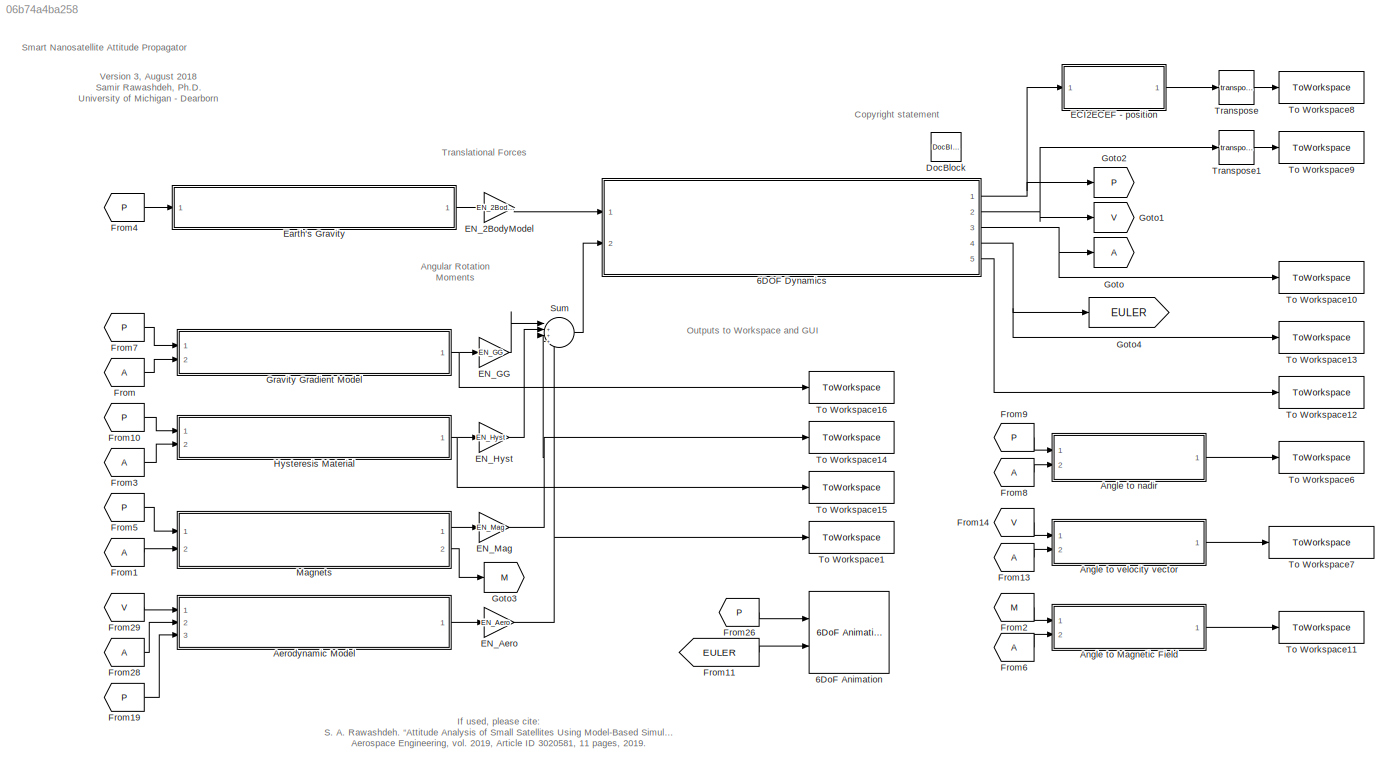
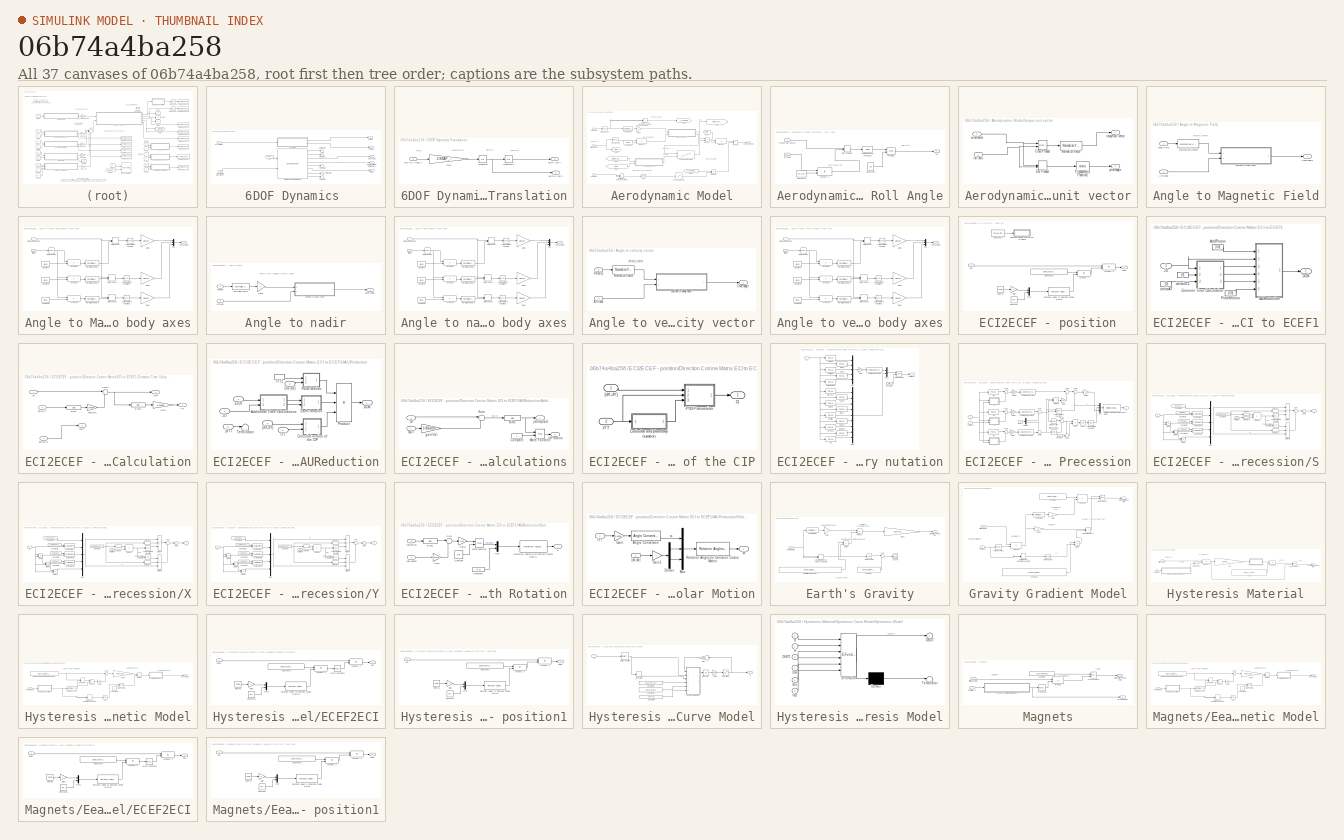
[diagram: thumbnail index - all 37 canvases of the model, root first then tree order]
MODEL slx_06b74a4ba258
KIND model
CONFIG AbsTol = auto
CONFIG EnableMultiTasking = on
CONFIG FixedStep = 0.1
CONFIG InitFcn = SNAP_Simulink_Init_Function
CONFIG MaxStep = 10
CONFIG MinStep = auto
CONFIG RelTol = 1e-4
CONFIG SampleTimeConstraint = Unconstrained
CONFIG SolverName = VariableStepAuto
CONFIG StartTime = 0.0
CONFIG StopTime = SNAP_sim_length
BLOCK [SubSystem] 6DOF Dynamics 
  Ports = [2, 5]
  RequestExecContextInheritance = off
BLOCK [Outport] 6DOF Dynamics /DCMbe (Attitude) [ECI to Body]
  Port = 3
BLOCK [Outport] 6DOF Dynamics /Euler Angles
  Port = 4
BLOCK [Inport] 6DOF Dynamics /Fxyz (N)  [ECI]
BLOCK [Inport] 6DOF Dynamics /Mxyz (N.m) [Body-fixed]
  Port = 2
BLOCK [Reference] 6DOF Dynamics /Rotations - 6DoF (Quaternion)  REF=aerolibobsolete/6DoF (Euler Angles)
  Ports = [2, 8]
  SourceBlock = aerolibobsolete/6DoF (Euler Angles)
  SourceProductBaseCode = AE
  SourceType = 6DoF EoM (Body Axis)
BLOCK [Terminator] 6DOF Dynamics /Terminator
BLOCK [Terminator] 6DOF Dynamics /Terminator1
BLOCK [Terminator] 6DOF Dynamics /Terminator2
BLOCK [Terminator] 6DOF Dynamics /Terminator3
BLOCK [Terminator] 6DOF Dynamics /Terminator5
BLOCK [SubSystem] 6DOF Dynamics /Translation
  Ports = [1, 2]
  RequestExecContextInheritance = off
BLOCK [Inport] 6DOF Dynamics /Translation/Fxyz (N) (inECI)
BLOCK [Gain] 6DOF Dynamics /Translation/Gain
  Gain = 1/SNAP_sat_mass
BLOCK [Integrator] 6DOF Dynamics /Translation/Integrator
  InitialCondition = initial_velocity
  Ports = [1, 1]
BLOCK [Integrator] 6DOF Dynamics /Translation/Integrator1
  InitialCondition = initial_position
  Ports = [1, 1]
BLOCK [Outport] 6DOF Dynamics /Translation/Ve(m//s) (ECI)
  Port = 2
BLOCK [Outport] 6DOF Dynamics /Translation/Xe(m) (ECI)
BLOCK [Outport] 6DOF Dynamics /V (m//s) [ECI]
  Port = 2
BLOCK [Outport] 6DOF Dynamics /X (m) [ECI]
BLOCK [Outport] 6DOF Dynamics /w (rad//s)
  Port = 5
BLOCK [Constant] 6DOF Dynamics /zero
  Value = [0 0 0]
BLOCK [Reference] 6DoF Animation  REF=aerolibanim/6DoF Animation
  Ports = [2]
  SourceBlock = aerolibanim/6DoF Animation
  SourceProductBaseCode = AE
  SourceType = 6DoF_Animation
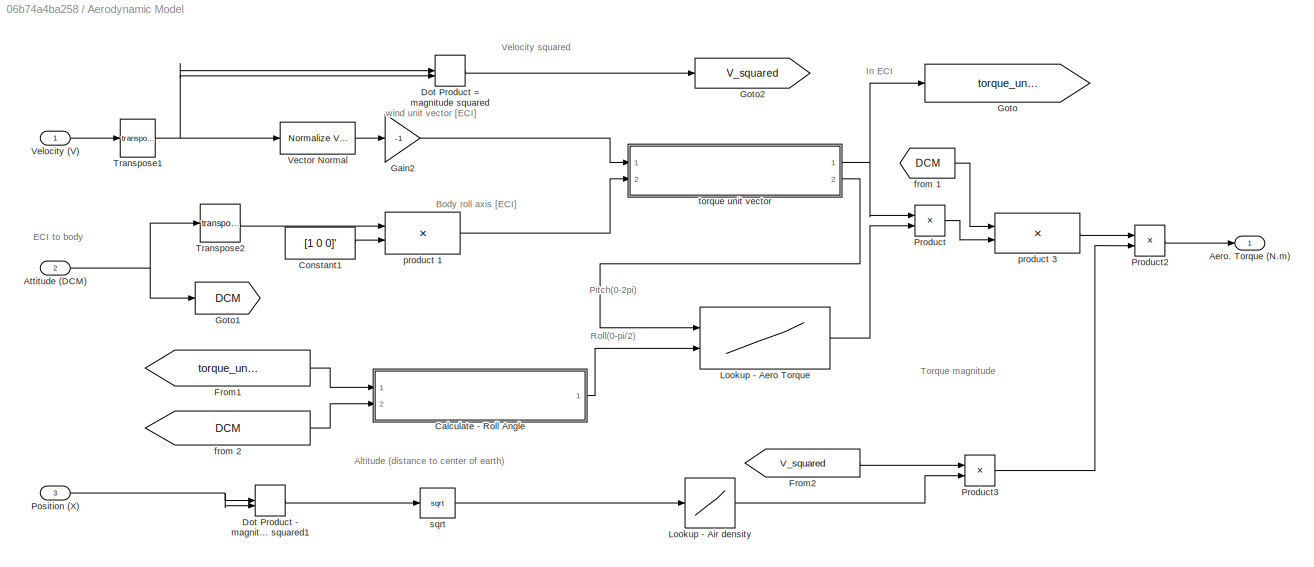
BLOCK [SubSystem] Aerodynamic Model
  Ports = [3, 1]
  RequestExecContextInheritance = off
BLOCK [Outport] Aerodynamic Model/Aero. Torque (N.m)
BLOCK [Inport] Aerodynamic Model/Attitude (DCM)
  Port = 2
BLOCK [SubSystem] Aerodynamic Model/Calculate - Roll Angle
  Ports = [2, 1]
  RequestExecContextInheritance = off
BLOCK [Constant] Aerodynamic Model/Calculate - Roll Angle/Constant2
  Value = [0 1 0]'
BLOCK [Constant] Aerodynamic Model/Calculate - Roll Angle/Constant3
  Value = pi/2
BLOCK [DotProduct] Aerodynamic Model/Calculate - Roll Angle/Dot Product
  OutDataTypeStr = Inherit: Inherit via internal rule
BLOCK [Math] Aerodynamic Model/Calculate - Roll Angle/Modulus
  Operator = mod
  Ports = [2, 1]
  SignedPower = on
BLOCK [Trigonometry] Aerodynamic Model/Calculate - Roll Angle/Trigonometric Function1
  Operator = acos
  Ports = [1, 1]
BLOCK [Inport] Aerodynamic Model/Calculate - Roll Angle/attitude
  Port = 2
BLOCK [Product] Aerodynamic Model/Calculate - Roll Angle/product 2
  Multiplication = Matrix(*)
  Ports = [2, 1]
  RndMeth = Zero
BLOCK [Outport] Aerodynamic Model/Calculate - Roll Angle/roll
BLOCK [Inport] Aerodynamic Model/Calculate - Roll Angle/torque unit vector
BLOCK [Constant] Aerodynamic Model/Constant1
  Value = [1 0 0]'
BLOCK [DotProduct] Aerodynamic Model/Dot Product - magnitude squared1
  OutDataTypeStr = Inherit: Inherit via internal rule
BLOCK [DotProduct] Aerodynamic Model/Dot Product = magnitude squared
  OutDataTypeStr = Inherit: Inherit via internal rule
BLOCK [From] Aerodynamic Model/From1
  CloseFcn = tagdialog Close
  GotoTag = torque_unit_vector
BLOCK [From] Aerodynamic Model/From2
  CloseFcn = tagdialog Close
  GotoTag = V_squared
BLOCK [Gain] Aerodynamic Model/Gain2
  Gain = -1
BLOCK [Goto] Aerodynamic Model/Goto
  GotoTag = torque_unit_vector
BLOCK [Goto] Aerodynamic Model/Goto1
  GotoTag = DCM
BLOCK [Goto] Aerodynamic Model/Goto2
  GotoTag = V_squared
BLOCK [Lookup2D] Aerodynamic Model/Lookup - Aero Torque
  ColumnIndex = SNAPaero.roll
  InputSameDT = off
  RowIndex = SNAPaero.pitch
  SaturateOnIntegerOverflow = off
  Table = SNAPaero.T
BLOCK [Lookup] Aerodynamic Model/Lookup - Air density
  InputValues = SNAPaero.alt_range*1000 + SNAP_CONST_r_earth
  SaturateOnIntegerOverflow = off
  Table = SNAPaero.av_density_vs_alt
BLOCK [Inport] Aerodynamic Model/Position (X)
  Port = 3
BLOCK [Product] Aerodynamic Model/Product
  Ports = [2, 1]
  RndMeth = Zero
BLOCK [Product] Aerodynamic Model/Product2
  Ports = [2, 1]
  RndMeth = Zero
BLOCK [Product] Aerodynamic Model/Product3
  Ports = [2, 1]
  RndMeth = Zero
BLOCK [Math] Aerodynamic Model/Transpose1
  Operator = transpose
  Ports = [1, 1]
  SignedPower = on
BLOCK [Math] Aerodynamic Model/Transpose2
  Operator = transpose
  Ports = [1, 1]
  SignedPower = on
BLOCK [Reference] Aerodynamic Model/Vector Normal  REF=vrlib/Utilities/Normalize Vector
  Ports = [1, 1]
  SourceBlock = vrlib/Utilities/Normalize Vector
  SourceProductBaseCode = SL
  SourceType = Normalize Vector
BLOCK [Inport] Aerodynamic Model/Velocity  (V)
BLOCK [From] Aerodynamic Model/from 1
  CloseFcn = tagdialog Close
  GotoTag = DCM
BLOCK [From] Aerodynamic Model/from 2
  CloseFcn = tagdialog Close
  GotoTag = DCM
BLOCK [Product] Aerodynamic Model/product 1
  Multiplication = Matrix(*)
  Ports = [2, 1]
  RndMeth = Zero
BLOCK [Product] Aerodynamic Model/product 3
  Multiplication = Matrix(*)
  Ports = [2, 1]
  RndMeth = Zero
BLOCK [Math] Aerodynamic Model/sqrt
  Operator = sqrt
  Ports = [1, 1]
  SignedPower = on
BLOCK [SubSystem] Aerodynamic Model/torque unit vector
  Ports = [2, 2]
  RequestExecContextInheritance = off
BLOCK [Reference] Aerodynamic Model/torque unit vector/Cross Product  REF=vrlib/Utilities/Cross Product
  Ports = [2, 1]
  SourceBlock = vrlib/Utilities/Cross Product
  SourceProductBaseCode = SL
  SourceType = Cross Product
BLOCK [DotProduct] Aerodynamic Model/torque unit vector/Dot Product
  OutDataTypeStr = Inherit: Inherit via internal rule
BLOCK [Reference] Aerodynamic Model/torque unit vector/Normalize Vector  REF=vrlib/Utilities/Normalize Vector
  Ports = [1, 1]
  SourceBlock = vrlib/Utilities/Normalize Vector
  SourceProductBaseCode = SL
  SourceType = Normalize Vector
BLOCK [Trigonometry] Aerodynamic Model/torque unit vector/Trigonometric Function2
  Operator = acos
  Ports = [1, 1]
BLOCK [Outport] Aerodynamic Model/torque unit vector/pitch angle
  Port = 2
BLOCK [Inport] Aerodynamic Model/torque unit vector/roll axis
  Port = 2
BLOCK [Outport] Aerodynamic Model/torque unit vector/torque unit vector
BLOCK [Inport] Aerodynamic Model/torque unit vector/wind vector
BLOCK [SubSystem] Angle to Magnetic Field
  Ports = [2, 1]
  RequestExecContextInheritance = off
BLOCK [Inport] Angle to Magnetic Field/Attitude
  Port = 2
BLOCK [Outport] Angle to Magnetic Field/Cone angle
BLOCK [Inport] Angle to Magnetic Field/Mag Field
BLOCK [Reference] Angle to Magnetic Field/Normalize Vector  REF=vrlib/Utilities/Normalize Vector
  Ports = [1, 1]
  SourceBlock = vrlib/Utilities/Normalize Vector
  SourceProductBaseCode = SL
  SourceType = Normalize Vector
BLOCK [SubSystem] Angle to Magnetic Field/cosines to body axes
  Ports = [2, 1]
  RequestExecContextInheritance = off
BLOCK [Inport] Angle to Magnetic Field/cosines to body axes/Attitude
  Port = 2
BLOCK [Outport] Angle to Magnetic Field/cosines to body axes/Cone Angles
BLOCK [Constant] Angle to Magnetic Field/cosines to body axes/Constant
  Value = [1 0 0]
BLOCK [Constant] Angle to Magnetic Field/cosines to body axes/Constant1
  Value = [0 1 0]
BLOCK [Constant] Angle to Magnetic Field/cosines to body axes/Constant2
  Value = [0 0 1]
BLOCK [DotProduct] Angle to Magnetic Field/cosines to body axes/Dot Product
  OutDataTypeStr = Inherit: Inherit via internal rule
BLOCK [DotProduct] Angle to Magnetic Field/cosines to body axes/Dot Product1
  OutDataTypeStr = Inherit: Inherit via internal rule
BLOCK [DotProduct] Angle to Magnetic Field/cosines to body axes/Dot Product2
  OutDataTypeStr = Inherit: Inherit via internal rule
BLOCK [Gain] Angle to Magnetic Field/cosines to body axes/Gain1
  Gain = 180/pi
BLOCK [Gain] Angle to Magnetic Field/cosines to body axes/Gain3
  Gain = 180/pi
BLOCK [Gain] Angle to Magnetic Field/cosines to body axes/Gain4
  Gain = 180/pi
BLOCK [Math] Angle to Magnetic Field/cosines to body axes/Math Function1
  Operator = transpose
  Ports = [1, 1]
  SignedPower = on
BLOCK [Mux] Angle to Magnetic Field/cosines to body axes/Mux
  DisplayOption = bar
  Inputs = 3
  Ports = [3, 1]
BLOCK [Reference] Angle to Magnetic Field/cosines to body axes/Normalize Vector1  REF=vrlib/Utilities/Normalize Vector
  Ports = [1, 1]
  SourceBlock = vrlib/Utilities/Normalize Vector
  SourceProductBaseCode = SL
  SourceType = Normalize Vector
BLOCK [Reference] Angle to Magnetic Field/cosines to body axes/Normalize Vector2  REF=vrlib/Utilities/Normalize Vector
  Ports = [1, 1]
  SourceBlock = vrlib/Utilities/Normalize Vector
  SourceProductBaseCode = SL
  SourceType = Normalize Vector
BLOCK [Reference] Angle to Magnetic Field/cosines to body axes/Normalize Vector3  REF=vrlib/Utilities/Normalize Vector
  Ports = [1, 1]
  SourceBlock = vrlib/Utilities/Normalize Vector
  SourceProductBaseCode = SL
  SourceType = Normalize Vector
BLOCK [Inport] Angle to Magnetic Field/cosines to body axes/Reference Vector
BLOCK [Trigonometry] Angle to Magnetic Field/cosines to body axes/Trigonometric Function
  Operator = acos
  Ports = [1, 1]
BLOCK [Trigonometry] Angle to Magnetic Field/cosines to body axes/Trigonometric Function1
  Operator = acos
  Ports = [1, 1]
BLOCK [Trigonometry] Angle to Magnetic Field/cosines to body axes/Trigonometric Function2
  Operator = acos
  Ports = [1, 1]
BLOCK [Product] Angle to Magnetic Field/cosines to body axes/product 1
  Multiplication = Matrix(*)
  Ports = [2, 1]
  RndMeth = Zero
BLOCK [Product] Angle to Magnetic Field/cosines to body axes/product 2
  Multiplication = Matrix(*)
  Ports = [2, 1]
  RndMeth = Zero
BLOCK [Product] Angle to Magnetic Field/cosines to body axes/product 3
  Multiplication = Matrix(*)
  Ports = [2, 1]
  RndMeth = Zero
BLOCK [SubSystem] Angle to nadir
  Ports = [2, 1]
  RequestExecContextInheritance = off
BLOCK [Inport] Angle to nadir/Attitude
  Port = 2
BLOCK [Outport] Angle to nadir/Cone angle
BLOCK [Gain] Angle to nadir/Gain2
  Gain = -1
BLOCK [Reference] Angle to nadir/Normalize Vector  REF=vrlib/Utilities/Normalize Vector
  Ports = [1, 1]
  SourceBlock = vrlib/Utilities/Normalize Vector
  SourceProductBaseCode = SL
  SourceType = Normalize Vector
BLOCK [Inport] Angle to nadir/Position
BLOCK [SubSystem] Angle to nadir/cosines to body axes
  Ports = [2, 1]
  RequestExecContextInheritance = off
BLOCK [Inport] Angle to nadir/cosines to body axes/Attitude
  Port = 2
BLOCK [Outport] Angle to nadir/cosines to body axes/Cone Angles
BLOCK [Constant] Angle to nadir/cosines to body axes/Constant
  Value = [1 0 0]
BLOCK [Constant] Angle to nadir/cosines to body axes/Constant1
  Value = [0 1 0]
BLOCK [Constant] Angle to nadir/cosines to body axes/Constant2
  Value = [0 0 1]
BLOCK [DotProduct] Angle to nadir/cosines to body axes/Dot Product
  OutDataTypeStr = Inherit: Inherit via internal rule
BLOCK [DotProduct] Angle to nadir/cosines to body axes/Dot Product1
  OutDataTypeStr = Inherit: Inherit via internal rule
BLOCK [DotProduct] Angle to nadir/cosines to body axes/Dot Product2
  OutDataTypeStr = Inherit: Inherit via internal rule
BLOCK [Gain] Angle to nadir/cosines to body axes/Gain1
  Gain = 180/pi
BLOCK [Gain] Angle to nadir/cosines to body axes/Gain3
  Gain = 180/pi
BLOCK [Gain] Angle to nadir/cosines to body axes/Gain4
  Gain = 180/pi
BLOCK [Math] Angle to nadir/cosines to body axes/Math Function1
  Operator = transpose
  Ports = [1, 1]
  SignedPower = on
BLOCK [Mux] Angle to nadir/cosines to body axes/Mux
  DisplayOption = bar
  Inputs = 3
  Ports = [3, 1]
BLOCK [Reference] Angle to nadir/cosines to body axes/Normalize Vector1  REF=vrlib/Utilities/Normalize Vector
  Ports = [1, 1]
  SourceBlock = vrlib/Utilities/Normalize Vector
  SourceProductBaseCode = SL
  SourceType = Normalize Vector
BLOCK [Reference] Angle to nadir/cosines to body axes/Normalize Vector2  REF=vrlib/Utilities/Normalize Vector
  Ports = [1, 1]
  SourceBlock = vrlib/Utilities/Normalize Vector
  SourceProductBaseCode = SL
  SourceType = Normalize Vector
BLOCK [Reference] Angle to nadir/cosines to body axes/Normalize Vector3  REF=vrlib/Utilities/Normalize Vector
  Ports = [1, 1]
  SourceBlock = vrlib/Utilities/Normalize Vector
  SourceProductBaseCode = SL
  SourceType = Normalize Vector
BLOCK [Inport] Angle to nadir/cosines to body axes/Reference Vector
BLOCK [Trigonometry] Angle to nadir/cosines to body axes/Trigonometric Function
  Operator = acos
  Ports = [1, 1]
BLOCK [Trigonometry] Angle to nadir/cosines to body axes/Trigonometric Function1
  Operator = acos
  Ports = [1, 1]
BLOCK [Trigonometry] Angle to nadir/cosines to body axes/Trigonometric Function2
  Operator = acos
  Ports = [1, 1]
BLOCK [Product] Angle to nadir/cosines to body axes/product 1
  Multiplication = Matrix(*)
  Ports = [2, 1]
  RndMeth = Zero
BLOCK [Product] Angle to nadir/cosines to body axes/product 2
  Multiplication = Matrix(*)
  Ports = [2, 1]
  RndMeth = Zero
BLOCK [Product] Angle to nadir/cosines to body axes/product 3
  Multiplication = Matrix(*)
  Ports = [2, 1]
  RndMeth = Zero
BLOCK [SubSystem] Angle to velocity vector
  Ports = [2, 1]
  RequestExecContextInheritance = off
BLOCK [Inport] Angle to velocity vector/Attitude
  Port = 2
BLOCK [Outport] Angle to velocity vector/Cone angle
BLOCK [Reference] Angle to velocity vector/Normalize Vector  REF=vrlib/Utilities/Normalize Vector
  Ports = [1, 1]
  SourceBlock = vrlib/Utilities/Normalize Vector
  SourceProductBaseCode = SL
  SourceType = Normalize Vector
BLOCK [Inport] Angle to velocity vector/Velocity
BLOCK [SubSystem] Angle to velocity vector/cosines to body axes
  Ports = [2, 1]
  RequestExecContextInheritance = off
BLOCK [Inport] Angle to velocity vector/cosines to body axes/Attitude
  Port = 2
BLOCK [Outport] Angle to velocity vector/cosines to body axes/Cone Angles
BLOCK [Constant] Angle to velocity vector/cosines to body axes/Constant
  Value = [1 0 0]
BLOCK [Constant] Angle to velocity vector/cosines to body axes/Constant1
  Value = [0 1 0]
BLOCK [Constant] Angle to velocity vector/cosines to body axes/Constant2
  Value = [0 0 1]
BLOCK [DotProduct] Angle to velocity vector/cosines to body axes/Dot Product
  OutDataTypeStr = Inherit: Inherit via internal rule
BLOCK [DotProduct] Angle to velocity vector/cosines to body axes/Dot Product1
  OutDataTypeStr = Inherit: Inherit via internal rule
BLOCK [DotProduct] Angle to velocity vector/cosines to body axes/Dot Product2
  OutDataTypeStr = Inherit: Inherit via internal rule
BLOCK [Gain] Angle to velocity vector/cosines to body axes/Gain1
  Gain = 180/pi
BLOCK [Gain] Angle to velocity vector/cosines to body axes/Gain3
  Gain = 180/pi
BLOCK [Gain] Angle to velocity vector/cosines to body axes/Gain4
  Gain = 180/pi
BLOCK [Math] Angle to velocity vector/cosines to body axes/Math Function1
  Operator = transpose
  Ports = [1, 1]
  SignedPower = on
BLOCK [Mux] Angle to velocity vector/cosines to body axes/Mux
  DisplayOption = bar
  Inputs = 3
  Ports = [3, 1]
BLOCK [Reference] Angle to velocity vector/cosines to body axes/Normalize Vector1  REF=vrlib/Utilities/Normalize Vector
  Ports = [1, 1]
  SourceBlock = vrlib/Utilities/Normalize Vector
  SourceProductBaseCode = SL
  SourceType = Normalize Vector
BLOCK [Reference] Angle to velocity vector/cosines to body axes/Normalize Vector2  REF=vrlib/Utilities/Normalize Vector
  Ports = [1, 1]
  SourceBlock = vrlib/Utilities/Normalize Vector
  SourceProductBaseCode = SL
  SourceType = Normalize Vector
BLOCK [Reference] Angle to velocity vector/cosines to body axes/Normalize Vector3  REF=vrlib/Utilities/Normalize Vector
  Ports = [1, 1]
  SourceBlock = vrlib/Utilities/Normalize Vector
  SourceProductBaseCode = SL
  SourceType = Normalize Vector
BLOCK [Inport] Angle to velocity vector/cosines to body axes/Reference Vector
BLOCK [Trigonometry] Angle to velocity vector/cosines to body axes/Trigonometric Function
  Operator = acos
  Ports = [1, 1]
BLOCK [Trigonometry] Angle to velocity vector/cosines to body axes/Trigonometric Function1
  Operator = acos
  Ports = [1, 1]
BLOCK [Trigonometry] Angle to velocity vector/cosines to body axes/Trigonometric Function2
  Operator = acos
  Ports = [1, 1]
BLOCK [Product] Angle to velocity vector/cosines to body axes/product 1
  Multiplication = Matrix(*)
  Ports = [2, 1]
  RndMeth = Zero
BLOCK [Product] Angle to velocity vector/cosines to body axes/product 2
  Multiplication = Matrix(*)
  Ports = [2, 1]
  RndMeth = Zero
BLOCK [Product] Angle to velocity vector/cosines to body axes/product 3
  Multiplication = Matrix(*)
  Ports = [2, 1]
  RndMeth = Zero
BLOCK [Reference] DocBlock  REF=simulink/Model-Wide
Utilities/DocBlock
  Ports = []
  SourceBlock = simulink/Model-Wide\nUtilities/DocBlock
  SourceProductBaseCode = SL
  SourceType = DocBlock
  UserDataPersistent = on
BLOCK [SubSystem] ECI2ECEF - position
  Ports = [1, 1]
  RequestExecContextInheritance = off
BLOCK [Constant] ECI2ECEF - position/Constant
  Value = [0 0]
BLOCK [Constant] ECI2ECEF - position/Constant1
  Commented = on
  Value = SNAP_JD
BLOCK [Constant] ECI2ECEF - position/Constant2
  Value = SNAP_starting_ECI2ECEF_dcm
BLOCK [SubSystem] ECI2ECEF - position/Direction Cosine Matrix ECI to ECEF1
  AncestorBlock = aerolibtransform2/Direction Cosine Matrix\nECI to ECEF
  AttributesFormatString = %<red>
  Commented = on
  Ports = [1, 1]
  RequestExecContextInheritance = off
BLOCK [Constant] ECI2ECEF - position/Direction Cosine Matrix ECI to ECEF1/AddParam
  Value = [0  0]
BLOCK [SubSystem] ECI2ECEF - position/Direction Cosine Matrix ECI to ECEF1/Common Time Calculation
  Ports = [3, 3]
  RequestExecContextInheritance = off
BLOCK [Bias] ECI2ECEF - position/Direction Cosine Matrix ECI to ECEF1/Common Time Calculation/Bias
  Bias = 32.184
  SaturateOnIntegerOverflow = off
BLOCK [Bias] ECI2ECEF - position/Direction Cosine Matrix ECI to ECEF1/Common Time Calculation/Bias1
  Bias = -51544.5
  SaturateOnIntegerOverflow = off
BLOCK [Gain] ECI2ECEF - position/Direction Cosine Matrix ECI to ECEF1/Common Time Calculation/Gain
  Gain = 1/36525
BLOCK [Inport] ECI2ECEF - position/Direction Cosine Matrix ECI to ECEF1/Common Time Calculation/JD
BLOCK [Sum] ECI2ECEF - position/Direction Cosine Matrix ECI to ECEF1/Common Time Calculation/Sum2
  Inputs = |++
  Ports = [2, 1]
BLOCK [Inport] ECI2ECEF - position/Direction Cosine Matrix ECI to ECEF1/Common Time Calculation/deltaAT
  Port = 3
BLOCK [Inport] ECI2ECEF - position/Direction Cosine Matrix ECI to ECEF1/Common Time Calculation/deltaUT1
  Port = 2
BLOCK [Outport] ECI2ECEF - position/Direction Cosine Matrix ECI to ECEF1/Common Time Calculation/jdTT
  Port = 3
BLOCK [Gain] ECI2ECEF - position/Direction Cosine Matrix ECI to ECEF1/Common Time Calculation/secGain
  Gain = 1/86400
BLOCK [Outport] ECI2ECEF - position/Direction Cosine Matrix ECI to ECEF1/Common Time Calculation/ssUT
  Port = 2
BLOCK [Outport] ECI2ECEF - position/Direction Cosine Matrix ECI to ECEF1/Common Time Calculation/tTT
BLOCK [Outport] ECI2ECEF - position/Direction Cosine Matrix ECI to ECEF1/DCM
BLOCK [SubSystem] ECI2ECEF - position/Direction Cosine Matrix ECI to ECEF1/IAUReduction
  AncestorBlock = aerolibtransform2sys/IAU20002006
  Ports = [6, 1]
  RequestExecContextInheritance = off
BLOCK [SubSystem] ECI2ECEF - position/Direction Cosine Matrix ECI to ECEF1/IAUReduction/Additional Time Calculations
  Ports = [2, 2]
  RequestExecContextInheritance = off
BLOCK [Bias] ECI2ECEF - position/Direction Cosine Matrix ECI to ECEF1/IAUReduction/Additional Time Calculations/Bias
  Bias = -51544.5
  SaturateOnIntegerOverflow = off
BLOCK [Constant] ECI2ECEF - position/Direction Cosine Matrix ECI to ECEF1/IAUReduction/Additional Time Calculations/Constant
BLOCK [Inport] ECI2ECEF - position/Direction Cosine Matrix ECI to ECEF1/IAUReduction/Additional Time Calculations/JD 
  Port = 2
BLOCK [Math] ECI2ECEF - position/Direction Cosine Matrix ECI to ECEF1/IAUReduction/Additional Time Calculations/Math Function
  Operator = mod
  Ports = [2, 1]
  SignedPower = on
BLOCK [Sum] ECI2ECEF - position/Direction Cosine Matrix ECI to ECEF1/IAUReduction/Additional Time Calculations/Sum
  Inputs = |++
  Ports = [2, 1]
BLOCK [Gain] ECI2ECEF - position/Direction Cosine Matrix ECI to ECEF1/IAUReduction/Additional Time Calculations/gainVal
  Gain = 1/86400
BLOCK [Outport] ECI2ECEF - position/Direction Cosine Matrix ECI to ECEF1/IAUReduction/Additional Time Calculations/jdElapsed
BLOCK [Outport] ECI2ECEF - position/Direction Cosine Matrix ECI to ECEF1/IAUReduction/Additional Time Calculations/jdFraction
  Port = 2
BLOCK [Inport] ECI2ECEF - position/Direction Cosine Matrix ECI to ECEF1/IAUReduction/Additional Time Calculations/ssUT
BLOCK [SubSystem] ECI2ECEF - position/Direction Cosine Matrix ECI to ECEF1/IAUReduction/Celestial motion of the CIP
  Ports = [2, 1]
  RequestExecContextInheritance = off
BLOCK [SubSystem] ECI2ECEF - position/Direction Cosine Matrix ECI to ECEF1/IAUReduction/Celestial motion of the CIP/Lunisolar and planetary nutation
  Ports = [1, 1]
  RequestExecContextInheritance = off
BLOCK [Reference] ECI2ECEF - position/Direction Cosine Matrix ECI to ECEF1/IAUReduction/Celestial motion of the CIP/Lunisolar and planetary nutation/Angle Conversion  REF=aerolibconvert2/Angle Conversion
  Ports = [1, 1]
  SourceBlock = aerolibconvert2/Angle Conversion
  SourceProductBaseCode = AE
  SourceType = Angle Conversion
BLOCK [Constant] ECI2ECEF - position/Direction Cosine Matrix ECI to ECEF1/IAUReduction/Celestial motion of the CIP/Lunisolar and planetary nutation/Constant
  Value = 2*pi
BLOCK [Gain] ECI2ECEF - position/Direction Cosine Matrix ECI to ECEF1/IAUReduction/Celestial motion of the CIP/Lunisolar and planetary nutation/Gain
  Gain = 1/3600
BLOCK [Math] ECI2ECEF - position/Direction Cosine Matrix ECI to ECEF1/IAUReduction/Celestial motion of the CIP/Lunisolar and planetary nutation/Math Function
  Operator = mod
  Ports = [2, 1]
  SignedPower = on
BLOCK [Mux] ECI2ECEF - position/Direction Cosine Matrix ECI to ECEF1/IAUReduction/Celestial motion of the CIP/Lunisolar and planetary nutation/Mux
  DisplayOption = bar
  Inputs = 5
  Ports = [5, 1]
BLOCK [Mux] ECI2ECEF - position/Direction Cosine Matrix ECI to ECEF1/IAUReduction/Celestial motion of the CIP/Lunisolar and planetary nutation/Mux1
  DisplayOption = bar
  Inputs = 9
  Ports = [9, 1]
BLOCK [Mux] ECI2ECEF - position/Direction Cosine Matrix ECI to ECEF1/IAUReduction/Celestial motion of the CIP/Lunisolar and planetary nutation/Mux2
  DisplayOption = bar
  Inputs = 2
  Ports = [2, 1]
BLOCK [Polyval] ECI2ECEF - position/Direction Cosine Matrix ECI to ECEF1/IAUReduction/Celestial motion of the CIP/Lunisolar and planetary nutation/dSun
  Coefs = [-0.00003169 0.006593 -6.3706 1602961601.2090 1072260.703692]
BLOCK [Polyval] ECI2ECEF - position/Direction Cosine Matrix ECI to ECEF1/IAUReduction/Celestial motion of the CIP/Lunisolar and planetary nutation/lEarth
  Coefs = [628.3075849991 1.753470314]
BLOCK [Polyval] ECI2ECEF - position/Direction Cosine Matrix ECI to ECEF1/IAUReduction/Celestial motion of the CIP/Lunisolar and planetary nutation/lJupiter
  Coefs = [52.9690962641 0.599546497]
BLOCK [Polyval] ECI2ECEF - position/Direction Cosine Matrix ECI to ECEF1/IAUReduction/Celestial motion of the CIP/Lunisolar and planetary nutation/lMars
  Coefs = [334.06124267 6.203480913]
BLOCK [Polyval] ECI2ECEF - position/Direction Cosine Matrix ECI to ECEF1/IAUReduction/Celestial motion of the CIP/Lunisolar and planetary nutation/lMercury
  Coefs = [2608.7903141574 4.402608842]
BLOCK [Polyval] ECI2ECEF - position/Direction Cosine Matrix ECI to ECEF1/IAUReduction/Celestial motion of the CIP/Lunisolar and planetary nutation/lNeptune
  Coefs = [3.8133035638 5.311886287]
BLOCK [Polyval] ECI2ECEF - position/Direction Cosine Matrix ECI to ECEF1/IAUReduction/Celestial motion of the CIP/Lunisolar and planetary nutation/lSaturn
  Coefs = [21.329910496 0.874016757]
BLOCK [Polyval] ECI2ECEF - position/Direction Cosine Matrix ECI to ECEF1/IAUReduction/Celestial motion of the CIP/Lunisolar and planetary nutation/lUranus
  Coefs = [7.4781598567 5.481293872]
BLOCK [Polyval] ECI2ECEF - position/Direction Cosine Matrix ECI to ECEF1/IAUReduction/Celestial motion of the CIP/Lunisolar and planetary nutation/lVenus
  Coefs = [1021.3285546211 3.176146697]
BLOCK [Polyval] ECI2ECEF - position/Direction Cosine Matrix ECI to ECEF1/IAUReduction/Celestial motion of the CIP/Lunisolar and planetary nutation/mMoon
  Coefs = [-0.00024470 0.051635 31.8792 1717915923.2178 485868.249036]
BLOCK [Polyval] ECI2ECEF - position/Direction Cosine Matrix ECI to ECEF1/IAUReduction/Celestial motion of the CIP/Lunisolar and planetary nutation/mSun
  Coefs = [-0.00001149 0.000136 -0.5532 129596581.0481 1287104.793048]
BLOCK [Outport] ECI2ECEF - position/Direction Cosine Matrix ECI to ECEF1/IAUReduction/Celestial motion of the CIP/Lunisolar and planetary nutation/nutationV
BLOCK [Polyval] ECI2ECEF - position/Direction Cosine Matrix ECI to ECEF1/IAUReduction/Celestial motion of the CIP/Lunisolar and planetary nutation/omegaMoon
  Coefs = [-0.00005939 0.007702 7.4722 -6962890.5431 450160.398036]
BLOCK [Polyval] ECI2ECEF - position/Direction Cosine Matrix ECI to ECEF1/IAUReduction/Celestial motion of the CIP/Lunisolar and planetary nutation/pa
  Coefs = [0.00000538691 0.02438175 0]
BLOCK [Inport] ECI2ECEF - position/Direction Cosine Matrix ECI to ECEF1/IAUReduction/Celestial motion of the CIP/Lunisolar and planetary nutation/tTT
BLOCK [Polyval] ECI2ECEF - position/Direction Cosine Matrix ECI to ECEF1/IAUReduction/Celestial motion of the CIP/Lunisolar and planetary nutation/umMoon
  Coefs = [0.00000417 -0.001037 -12.7512 1739527262.8478 335779.526232]
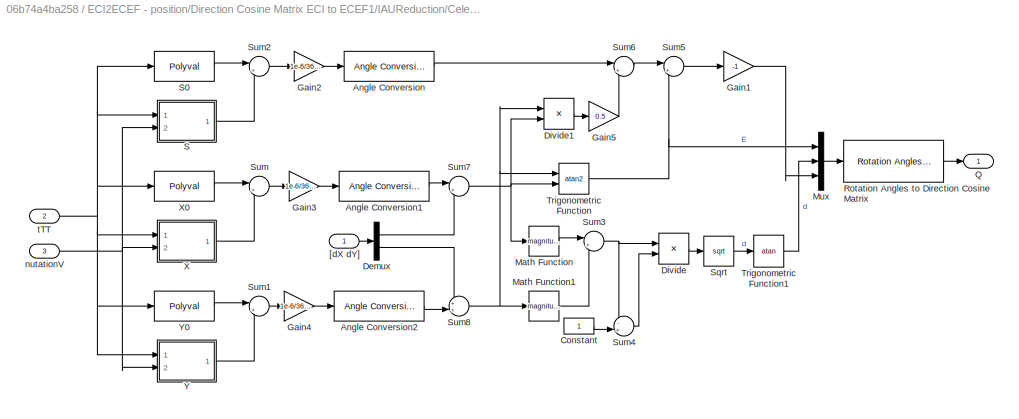
BLOCK [SubSystem] ECI2ECEF - position/Direction Cosine Matrix ECI to ECEF1/IAUReduction/Celestial motion of the CIP/P03 Precession
  Ports = [3, 1]
  RequestExecContextInheritance = off
BLOCK [Reference] ECI2ECEF - position/Direction Cosine Matrix ECI to ECEF1/IAUReduction/Celestial motion of the CIP/P03 Precession/Angle Conversion  REF=aerolibconvert2/Angle Conversion
  Ports = [1, 1]
  SourceBlock = aerolibconvert2/Angle Conversion
  SourceProductBaseCode = AE
  SourceType = Angle Conversion
BLOCK [Reference] ECI2ECEF - position/Direction Cosine Matrix ECI to ECEF1/IAUReduction/Celestial motion of the CIP/P03 Precession/Angle Conversion1  REF=aerolibconvert2/Angle Conversion
  Ports = [1, 1]
  SourceBlock = aerolibconvert2/Angle Conversion
  SourceProductBaseCode = AE
  SourceType = Angle Conversion
BLOCK [Reference] ECI2ECEF - position/Direction Cosine Matrix ECI to ECEF1/IAUReduction/Celestial motion of the CIP/P03 Precession/Angle Conversion2  REF=aerolibconvert2/Angle Conversion
  Ports = [1, 1]
  SourceBlock = aerolibconvert2/Angle Conversion
  SourceProductBaseCode = AE
  SourceType = Angle Conversion
BLOCK [Constant] ECI2ECEF - position/Direction Cosine Matrix ECI to ECEF1/IAUReduction/Celestial motion of the CIP/P03 Precession/Constant
BLOCK [Demux] ECI2ECEF - position/Direction Cosine Matrix ECI to ECEF1/IAUReduction/Celestial motion of the CIP/P03 Precession/Demux
  Outputs = 2
  Ports = [1, 2]
BLOCK [Product] ECI2ECEF - position/Direction Cosine Matrix ECI to ECEF1/IAUReduction/Celestial motion of the CIP/P03 Precession/Divide
  Inputs = */
  Ports = [2, 1]
BLOCK [Product] ECI2ECEF - position/Direction Cosine Matrix ECI to ECEF1/IAUReduction/Celestial motion of the CIP/P03 Precession/Divide1
  Inputs = **
  Ports = [2, 1]
BLOCK [Gain] ECI2ECEF - position/Direction Cosine Matrix ECI to ECEF1/IAUReduction/Celestial motion of the CIP/P03 Precession/Gain1
  Gain = -1
BLOCK [Gain] ECI2ECEF - position/Direction Cosine Matrix ECI to ECEF1/IAUReduction/Celestial motion of the CIP/P03 Precession/Gain2
  Gain = 1e-6/3600
BLOCK [Gain] ECI2ECEF - position/Direction Cosine Matrix ECI to ECEF1/IAUReduction/Celestial motion of the CIP/P03 Precession/Gain3
  Gain = 1e-6/3600
BLOCK [Gain] ECI2ECEF - position/Direction Cosine Matrix ECI to ECEF1/IAUReduction/Celestial motion of the CIP/P03 Precession/Gain4
  Gain = 1e-6/3600
BLOCK [Gain] ECI2ECEF - position/Direction Cosine Matrix ECI to ECEF1/IAUReduction/Celestial motion of the CIP/P03 Precession/Gain5
  Gain = 0.5
BLOCK [Math] ECI2ECEF - position/Direction Cosine Matrix ECI to ECEF1/IAUReduction/Celestial motion of the CIP/P03 Precession/Math Function
  Operator = magnitude^2
  Ports = [1, 1]
  SignedPower = on
BLOCK [Math] ECI2ECEF - position/Direction Cosine Matrix ECI to ECEF1/IAUReduction/Celestial motion of the CIP/P03 Precession/Math Function1
  Operator = magnitude^2
  Ports = [1, 1]
  SignedPower = on
BLOCK [Mux] ECI2ECEF - position/Direction Cosine Matrix ECI to ECEF1/IAUReduction/Celestial motion of the CIP/P03 Precession/Mux
  DisplayOption = bar
  Inputs = 3
  Ports = [3, 1]
BLOCK [Outport] ECI2ECEF - position/Direction Cosine Matrix ECI to ECEF1/IAUReduction/Celestial motion of the CIP/P03 Precession/Q
BLOCK [Reference] ECI2ECEF - position/Direction Cosine Matrix ECI to ECEF1/IAUReduction/Celestial motion of the CIP/P03 Precession/Rotation Angles to Direction Cosine Matrix  REF=aerolibtransform2/Rotation Angles to
Direction Cosine Matrix
  AttributesFormatString = Rotation Order: %<rotationOrder>
  Ports = [1, 1]
  SourceBlock = aerolibtransform2/Rotation Angles to\nDirection Cosine Matrix
  SourceProductBaseCode = AE
  SourceType = Ang2DCM
BLOCK [SubSystem] ECI2ECEF - position/Direction Cosine Matrix ECI to ECEF1/IAUReduction/Celestial motion of the CIP/P03 Precession/S
  Ports = [2, 1]
  RequestExecContextInheritance = off
BLOCK [Assignment] ECI2ECEF - position/Direction Cosine Matrix ECI to ECEF1/IAUReduction/Celestial motion of the CIP/P03 Precession/S/Assignment
  IndexOptions = Assign all
  Indices = 1
  OutputSizes = 1
  Ports = [2, 1]
BLOCK [Assignment] ECI2ECEF - position/Direction Cosine Matrix ECI to ECEF1/IAUReduction/Celestial motion of the CIP/P03 Precession/S/Assignment1
  IndexOptions = Assign all
  Indices = 1
  OutputSizes = 1
  Ports = [2, 1]
BLOCK [Assignment] ECI2ECEF - position/Direction Cosine Matrix ECI to ECEF1/IAUReduction/Celestial motion of the CIP/P03 Precession/S/Assignment2
  IndexOptions = Assign all
  Indices = 1
  OutputSizes = 1
  Ports = [2, 1]
BLOCK [Constant] ECI2ECEF - position/Direction Cosine Matrix ECI to ECEF1/IAUReduction/Celestial motion of the CIP/P03 Precession/S/Constant
  Value = aeroCIP2006.S
BLOCK [Constant] ECI2ECEF - position/Direction Cosine Matrix ECI to ECEF1/IAUReduction/Celestial motion of the CIP/P03 Precession/S/Constant1
  Value = ones(33,1)
BLOCK [Constant] ECI2ECEF - position/Direction Cosine Matrix ECI to ECEF1/IAUReduction/Celestial motion of the CIP/P03 Precession/S/Constant2
  Value = zeros(3,1)
BLOCK [Constant] ECI2ECEF - position/Direction Cosine Matrix ECI to ECEF1/IAUReduction/Celestial motion of the CIP/P03 Precession/S/Constant3
  Value = zeros(25,1)
BLOCK [Constant] ECI2ECEF - position/Direction Cosine Matrix ECI to ECEF1/IAUReduction/Celestial motion of the CIP/P03 Precession/S/Constant4
  Value = zeros(4,1)
BLOCK [Product] ECI2ECEF - position/Direction Cosine Matrix ECI to ECEF1/IAUReduction/Celestial motion of the CIP/P03 Precession/S/Divide
  Inputs = **
  Ports = [2, 1]
BLOCK [Product] ECI2ECEF - position/Direction Cosine Matrix ECI to ECEF1/IAUReduction/Celestial motion of the CIP/P03 Precession/S/Divide1
  Inputs = **
  Ports = [2, 1]
BLOCK [Product] ECI2ECEF - position/Direction Cosine Matrix ECI to ECEF1/IAUReduction/Celestial motion of the CIP/P03 Precession/S/Divide2
  Inputs = **
  Ports = [2, 1]
BLOCK [Product] ECI2ECEF - position/Direction Cosine Matrix ECI to ECEF1/IAUReduction/Celestial motion of the CIP/P03 Precession/S/Divide3
  Inputs = **
  Multiplication = Matrix(*)
  Ports = [2, 1]
BLOCK [Product] ECI2ECEF - position/Direction Cosine Matrix ECI to ECEF1/IAUReduction/Celestial motion of the CIP/P03 Precession/S/Divide4
  Inputs = ***
  Ports = [3, 1]
BLOCK [Product] ECI2ECEF - position/Direction Cosine Matrix ECI to ECEF1/IAUReduction/Celestial motion of the CIP/P03 Precession/S/Divide5
  Inputs = ***
  Ports = [3, 1]
BLOCK [Mux] ECI2ECEF - position/Direction Cosine Matrix ECI to ECEF1/IAUReduction/Celestial motion of the CIP/P03 Precession/S/Mux
  DisplayOption = bar
  Inputs = 5
  Ports = [5, 1]
BLOCK [Outport] ECI2ECEF - position/Direction Cosine Matrix ECI to ECEF1/IAUReduction/Celestial motion of the CIP/P03 Precession/S/S
BLOCK [Selector] ECI2ECEF - position/Direction Cosine Matrix ECI to ECEF1/IAUReduction/Celestial motion of the CIP/P03 Precession/S/Selector
  IndexOptions = Select all,Index vector (dialog)
  Indices = [1 3],[4 5 6 7 8 9 10 11]
  InputPortWidth = 3
  NumberOfDimensions = 2
  OutputSizes = 1,11
  Ports = [1, 1]
BLOCK [Selector] ECI2ECEF - position/Direction Cosine Matrix ECI to ECEF1/IAUReduction/Celestial motion of the CIP/P03 Precession/S/Selector1
  IndexOptions = Select all,Index vector (dialog)
  Indices = [1 3],2
  InputPortWidth = 3
  NumberOfDimensions = 2
  OutputSizes = 1,14
  Ports = [1, 1]
BLOCK [Selector] ECI2ECEF - position/Direction Cosine Matrix ECI to ECEF1/IAUReduction/Celestial motion of the CIP/P03 Precession/S/Selector2
  IndexOptions = Select all,Index vector (dialog)
  Indices = [1 3],3
  InputPortWidth = 3
  NumberOfDimensions = 2
  OutputSizes = 1,14
  Ports = [1, 1]
BLOCK [Selector] ECI2ECEF - position/Direction Cosine Matrix ECI to ECEF1/IAUReduction/Celestial motion of the CIP/P03 Precession/S/Selector3
  IndexOptions = Index vector (dialog)
  Indices = [1 2 3 4 5 7 8 14]
  InputPortWidth = 14
  OutputSizes = 1
  Ports = [1, 1]
BLOCK [Sum] ECI2ECEF - position/Direction Cosine Matrix ECI to ECEF1/IAUReduction/Celestial motion of the CIP/P03 Precession/S/Sum
  Inputs = |++
  Ports = [2, 1]
BLOCK [Sum] ECI2ECEF - position/Direction Cosine Matrix ECI to ECEF1/IAUReduction/Celestial motion of the CIP/P03 Precession/S/Sum1
  Inputs = |+|
  Ports = [1, 1]
BLOCK [Trigonometry] ECI2ECEF - position/Direction Cosine Matrix ECI to ECEF1/IAUReduction/Celestial motion of the CIP/P03 Precession/S/Trigonometric Function
  Ports = [1, 1]
BLOCK [Trigonometry] ECI2ECEF - position/Direction Cosine Matrix ECI to ECEF1/IAUReduction/Celestial motion of the CIP/P03 Precession/S/Trigonometric Function1
  Operator = cos
  Ports = [1, 1]
BLOCK [Inport] ECI2ECEF - position/Direction Cosine Matrix ECI to ECEF1/IAUReduction/Celestial motion of the CIP/P03 Precession/S/nutationV
  Port = 2
BLOCK [Inport] ECI2ECEF - position/Direction Cosine Matrix ECI to ECEF1/IAUReduction/Celestial motion of the CIP/P03 Precession/S/tTT
BLOCK [Polyval] ECI2ECEF - position/Direction Cosine Matrix ECI to ECEF1/IAUReduction/Celestial motion of the CIP/P03 Precession/S0
  Coefs = [15.62 27.98 -72574.11 -122.68 3808.65  94]
BLOCK [Sqrt] ECI2ECEF - position/Direction Cosine Matrix ECI to ECEF1/IAUReduction/Celestial motion of the CIP/P03 Precession/Sqrt
BLOCK [Sum] ECI2ECEF - position/Direction Cosine Matrix ECI to ECEF1/IAUReduction/Celestial motion of the CIP/P03 Precession/Sum
  Inputs = |++
  Ports = [2, 1]
BLOCK [Sum] ECI2ECEF - position/Direction Cosine Matrix ECI to ECEF1/IAUReduction/Celestial motion of the CIP/P03 Precession/Sum1
  Inputs = |++
  Ports = [2, 1]
BLOCK [Sum] ECI2ECEF - position/Direction Cosine Matrix ECI to ECEF1/IAUReduction/Celestial motion of the CIP/P03 Precession/Sum2
  Inputs = |++
  Ports = [2, 1]
BLOCK [Sum] ECI2ECEF - position/Direction Cosine Matrix ECI to ECEF1/IAUReduction/Celestial motion of the CIP/P03 Precession/Sum3
  Inputs = |++
  Ports = [2, 1]
BLOCK [Sum] ECI2ECEF - position/Direction Cosine Matrix ECI to ECEF1/IAUReduction/Celestial motion of the CIP/P03 Precession/Sum4
  Inputs = -+|
  Ports = [2, 1]
BLOCK [Sum] ECI2ECEF - position/Direction Cosine Matrix ECI to ECEF1/IAUReduction/Celestial motion of the CIP/P03 Precession/Sum5
  Inputs = |++
  Ports = [2, 1]
BLOCK [Sum] ECI2ECEF - position/Direction Cosine Matrix ECI to ECEF1/IAUReduction/Celestial motion of the CIP/P03 Precession/Sum6
  Inputs = |+-
  Ports = [2, 1]
BLOCK [Sum] ECI2ECEF - position/Direction Cosine Matrix ECI to ECEF1/IAUReduction/Celestial motion of the CIP/P03 Precession/Sum7
  Inputs = |++
  Ports = [2, 1]
BLOCK [Sum] ECI2ECEF - position/Direction Cosine Matrix ECI to ECEF1/IAUReduction/Celestial motion of the CIP/P03 Precession/Sum8
  Inputs = ++|
  Ports = [2, 1]
BLOCK [Trigonometry] ECI2ECEF - position/Direction Cosine Matrix ECI to ECEF1/IAUReduction/Celestial motion of the CIP/P03 Precession/Trigonometric Function
  Operator = atan2
  Ports = [2, 1]
BLOCK [Trigonometry] ECI2ECEF - position/Direction Cosine Matrix ECI to ECEF1/IAUReduction/Celestial motion of the CIP/P03 Precession/Trigonometric Function1
  Operator = atan
  Ports = [1, 1]
BLOCK [SubSystem] ECI2ECEF - position/Direction Cosine Matrix ECI to ECEF1/IAUReduction/Celestial motion of the CIP/P03 Precession/X
  Ports = [2, 1]
  RequestExecContextInheritance = off
BLOCK [Assignment] ECI2ECEF - position/Direction Cosine Matrix ECI to ECEF1/IAUReduction/Celestial motion of the CIP/P03 Precession/X/Assignment
  IndexOptions = Assign all
  Indices = 1
  OutputSizes = 1
  Ports = [2, 1]
BLOCK [Assignment] ECI2ECEF - position/Direction Cosine Matrix ECI to ECEF1/IAUReduction/Celestial motion of the CIP/P03 Precession/X/Assignment1
  IndexOptions = Assign all
  Indices = 1
  OutputSizes = 1
  Ports = [2, 1]
BLOCK [Assignment] ECI2ECEF - position/Direction Cosine Matrix ECI to ECEF1/IAUReduction/Celestial motion of the CIP/P03 Precession/X/Assignment2
  IndexOptions = Assign all
  Indices = 1
  OutputSizes = 1
  Ports = [2, 1]
BLOCK [Constant] ECI2ECEF - position/Direction Cosine Matrix ECI to ECEF1/IAUReduction/Celestial motion of the CIP/P03 Precession/X/Constant
  Value = aeroCIP2006.X
BLOCK [Constant] ECI2ECEF - position/Direction Cosine Matrix ECI to ECEF1/IAUReduction/Celestial motion of the CIP/P03 Precession/X/Constant1
  Value = ones(1306,1)
BLOCK [Constant] ECI2ECEF - position/Direction Cosine Matrix ECI to ECEF1/IAUReduction/Celestial motion of the CIP/P03 Precession/X/Constant2
  Value = zeros(253,1)
BLOCK [Constant] ECI2ECEF - position/Direction Cosine Matrix ECI to ECEF1/IAUReduction/Celestial motion of the CIP/P03 Precession/X/Constant3
  Value = zeros(36,1)
BLOCK [Constant] ECI2ECEF - position/Direction Cosine Matrix ECI to ECEF1/IAUReduction/Celestial motion of the CIP/P03 Precession/X/Constant4
  Value = zeros(4,1)
BLOCK [Product] ECI2ECEF - position/Direction Cosine Matrix ECI to ECEF1/IAUReduction/Celestial motion of the CIP/P03 Precession/X/Divide
  Inputs = **
  Ports = [2, 1]
BLOCK [Product] ECI2ECEF - position/Direction Cosine Matrix ECI to ECEF1/IAUReduction/Celestial motion of the CIP/P03 Precession/X/Divide1
  Inputs = **
  Ports = [2, 1]
BLOCK [Product] ECI2ECEF - position/Direction Cosine Matrix ECI to ECEF1/IAUReduction/Celestial motion of the CIP/P03 Precession/X/Divide2
  Inputs = **
  Ports = [2, 1]
BLOCK [Product] ECI2ECEF - position/Direction Cosine Matrix ECI to ECEF1/IAUReduction/Celestial motion of the CIP/P03 Precession/X/Divide3
  Inputs = **
  Multiplication = Matrix(*)
  Ports = [2, 1]
BLOCK [Product] ECI2ECEF - position/Direction Cosine Matrix ECI to ECEF1/IAUReduction/Celestial motion of the CIP/P03 Precession/X/Divide4
  Inputs = ***
  Ports = [3, 1]
BLOCK [Product] ECI2ECEF - position/Direction Cosine Matrix ECI to ECEF1/IAUReduction/Celestial motion of the CIP/P03 Precession/X/Divide5
  Inputs = ***
  Ports = [3, 1]
BLOCK [Mux] ECI2ECEF - position/Direction Cosine Matrix ECI to ECEF1/IAUReduction/Celestial motion of the CIP/P03 Precession/X/Mux
  DisplayOption = bar
  Inputs = 5
  Ports = [5, 1]
BLOCK [Selector] ECI2ECEF - position/Direction Cosine Matrix ECI to ECEF1/IAUReduction/Celestial motion of the CIP/P03 Precession/X/Selector
  IndexOptions = Select all,Starting index (dialog)
  Indices = [1 3],4
  InputPortWidth = 3
  NumberOfDimensions = 2
  OutputSizes = 1,14
  Ports = [1, 1]
BLOCK [Selector] ECI2ECEF - position/Direction Cosine Matrix ECI to ECEF1/IAUReduction/Celestial motion of the CIP/P03 Precession/X/Selector1
  IndexOptions = Select all,Index vector (dialog)
  Indices = [1 3],2
  InputPortWidth = 3
  NumberOfDimensions = 2
  OutputSizes = 1,14
  Ports = [1, 1]
BLOCK [Selector] ECI2ECEF - position/Direction Cosine Matrix ECI to ECEF1/IAUReduction/Celestial motion of the CIP/P03 Precession/X/Selector2
  IndexOptions = Select all,Index vector (dialog)
  Indices = [1 3],3
  InputPortWidth = 3
  NumberOfDimensions = 2
  OutputSizes = 1,14
  Ports = [1, 1]
BLOCK [Sum] ECI2ECEF - position/Direction Cosine Matrix ECI to ECEF1/IAUReduction/Celestial motion of the CIP/P03 Precession/X/Sum
  Inputs = |++
  Ports = [2, 1]
BLOCK [Sum] ECI2ECEF - position/Direction Cosine Matrix ECI to ECEF1/IAUReduction/Celestial motion of the CIP/P03 Precession/X/Sum1
  Inputs = |+|
  Ports = [1, 1]
BLOCK [Trigonometry] ECI2ECEF - position/Direction Cosine Matrix ECI to ECEF1/IAUReduction/Celestial motion of the CIP/P03 Precession/X/Trigonometric Function
  Ports = [1, 1]
BLOCK [Trigonometry] ECI2ECEF - position/Direction Cosine Matrix ECI to ECEF1/IAUReduction/Celestial motion of the CIP/P03 Precession/X/Trigonometric Function1
  Operator = cos
  Ports = [1, 1]
BLOCK [Outport] ECI2ECEF - position/Direction Cosine Matrix ECI to ECEF1/IAUReduction/Celestial motion of the CIP/P03 Precession/X/X
BLOCK [Inport] ECI2ECEF - position/Direction Cosine Matrix ECI to ECEF1/IAUReduction/Celestial motion of the CIP/P03 Precession/X/nutationV
  Port = 2
BLOCK [Inport] ECI2ECEF - position/Direction Cosine Matrix ECI to ECEF1/IAUReduction/Celestial motion of the CIP/P03 Precession/X/tTT
BLOCK [Polyval] ECI2ECEF - position/Direction Cosine Matrix ECI to ECEF1/IAUReduction/Celestial motion of the CIP/P03 Precession/X0
  Coefs = [5.9285 7.578 -198618.34 -429782.9 2004191898 -16617]
BLOCK [SubSystem] ECI2ECEF - position/Direction Cosine Matrix ECI to ECEF1/IAUReduction/Celestial motion of the CIP/P03 Precession/Y
  Ports = [2, 1]
  RequestExecContextInheritance = off
BLOCK [Assignment] ECI2ECEF - position/Direction Cosine Matrix ECI to ECEF1/IAUReduction/Celestial motion of the CIP/P03 Precession/Y/Assignment
  IndexOptions = Assign all
  Indices = 1
  OutputSizes = 1
  Ports = [2, 1]
BLOCK [Assignment] ECI2ECEF - position/Direction Cosine Matrix ECI to ECEF1/IAUReduction/Celestial motion of the CIP/P03 Precession/Y/Assignment1
  IndexOptions = Assign all
  Indices = 1
  OutputSizes = 1
  Ports = [2, 1]
BLOCK [Assignment] ECI2ECEF - position/Direction Cosine Matrix ECI to ECEF1/IAUReduction/Celestial motion of the CIP/P03 Precession/Y/Assignment2
  IndexOptions = Assign all
  Indices = 1
  OutputSizes = 1
  Ports = [2, 1]
BLOCK [Constant] ECI2ECEF - position/Direction Cosine Matrix ECI to ECEF1/IAUReduction/Celestial motion of the CIP/P03 Precession/Y/Constant
  Value = aeroCIP2006.Y
BLOCK [Constant] ECI2ECEF - position/Direction Cosine Matrix ECI to ECEF1/IAUReduction/Celestial motion of the CIP/P03 Precession/Y/Constant1
  Value = ones(962,1)
BLOCK [Constant] ECI2ECEF - position/Direction Cosine Matrix ECI to ECEF1/IAUReduction/Celestial motion of the CIP/P03 Precession/Y/Constant2
  Value = zeros(277,1)
BLOCK [Constant] ECI2ECEF - position/Direction Cosine Matrix ECI to ECEF1/IAUReduction/Celestial motion of the CIP/P03 Precession/Y/Constant3
  Value = zeros(30,1)
BLOCK [Constant] ECI2ECEF - position/Direction Cosine Matrix ECI to ECEF1/IAUReduction/Celestial motion of the CIP/P03 Precession/Y/Constant4
  Value = zeros(5,1)
BLOCK [Product] ECI2ECEF - position/Direction Cosine Matrix ECI to ECEF1/IAUReduction/Celestial motion of the CIP/P03 Precession/Y/Divide
  Inputs = **
  Ports = [2, 1]
BLOCK [Product] ECI2ECEF - position/Direction Cosine Matrix ECI to ECEF1/IAUReduction/Celestial motion of the CIP/P03 Precession/Y/Divide1
  Inputs = **
  Ports = [2, 1]
BLOCK [Product] ECI2ECEF - position/Direction Cosine Matrix ECI to ECEF1/IAUReduction/Celestial motion of the CIP/P03 Precession/Y/Divide2
  Inputs = **
  Ports = [2, 1]
BLOCK [Product] ECI2ECEF - position/Direction Cosine Matrix ECI to ECEF1/IAUReduction/Celestial motion of the CIP/P03 Precession/Y/Divide3
  Inputs = **
  Multiplication = Matrix(*)
  Ports = [2, 1]
BLOCK [Product] ECI2ECEF - position/Direction Cosine Matrix ECI to ECEF1/IAUReduction/Celestial motion of the CIP/P03 Precession/Y/Divide4
  Inputs = ***
  Ports = [3, 1]
BLOCK [Product] ECI2ECEF - position/Direction Cosine Matrix ECI to ECEF1/IAUReduction/Celestial motion of the CIP/P03 Precession/Y/Divide5
  Inputs = ***
  Ports = [3, 1]
BLOCK [Mux] ECI2ECEF - position/Direction Cosine Matrix ECI to ECEF1/IAUReduction/Celestial motion of the CIP/P03 Precession/Y/Mux
  DisplayOption = bar
  Inputs = 5
  Ports = [5, 1]
BLOCK [Selector] ECI2ECEF - position/Direction Cosine Matrix ECI to ECEF1/IAUReduction/Celestial motion of the CIP/P03 Precession/Y/Selector
  IndexOptions = Select all,Starting index (dialog)
  Indices = [1 3],4
  InputPortWidth = 3
  NumberOfDimensions = 2
  OutputSizes = 1,14
  Ports = [1, 1]
BLOCK [Selector] ECI2ECEF - position/Direction Cosine Matrix ECI to ECEF1/IAUReduction/Celestial motion of the CIP/P03 Precession/Y/Selector1
  IndexOptions = Select all,Index vector (dialog)
  Indices = [1 3],2
  InputPortWidth = 3
  NumberOfDimensions = 2
  OutputSizes = 1,14
  Ports = [1, 1]
BLOCK [Selector] ECI2ECEF - position/Direction Cosine Matrix ECI to ECEF1/IAUReduction/Celestial motion of the CIP/P03 Precession/Y/Selector2
  IndexOptions = Select all,Index vector (dialog)
  Indices = [1 3],3
  InputPortWidth = 3
  NumberOfDimensions = 2
  OutputSizes = 1,14
  Ports = [1, 1]
BLOCK [Sum] ECI2ECEF - position/Direction Cosine Matrix ECI to ECEF1/IAUReduction/Celestial motion of the CIP/P03 Precession/Y/Sum
  Inputs = |++
  Ports = [2, 1]
BLOCK [Sum] ECI2ECEF - position/Direction Cosine Matrix ECI to ECEF1/IAUReduction/Celestial motion of the CIP/P03 Precession/Y/Sum1
  Inputs = |+|
  Ports = [1, 1]
BLOCK [Trigonometry] ECI2ECEF - position/Direction Cosine Matrix ECI to ECEF1/IAUReduction/Celestial motion of the CIP/P03 Precession/Y/Trigonometric Function
  Ports = [1, 1]
BLOCK [Trigonometry] ECI2ECEF - position/Direction Cosine Matrix ECI to ECEF1/IAUReduction/Celestial motion of the CIP/P03 Precession/Y/Trigonometric Function1
  Operator = cos
  Ports = [1, 1]
BLOCK [Outport] ECI2ECEF - position/Direction Cosine Matrix ECI to ECEF1/IAUReduction/Celestial motion of the CIP/P03 Precession/Y/Y
BLOCK [Inport] ECI2ECEF - position/Direction Cosine Matrix ECI to ECEF1/IAUReduction/Celestial motion of the CIP/P03 Precession/Y/nutationV
  Port = 2
BLOCK [Inport] ECI2ECEF - position/Direction Cosine Matrix ECI to ECEF1/IAUReduction/Celestial motion of the CIP/P03 Precession/Y/tTT
BLOCK [Polyval] ECI2ECEF - position/Direction Cosine Matrix ECI to ECEF1/IAUReduction/Celestial motion of the CIP/P03 Precession/Y0
  Coefs = [0.1358 1112.526 1900.59 -22407274.7 -25896 -6951]
BLOCK [Inport] ECI2ECEF - position/Direction Cosine Matrix ECI to ECEF1/IAUReduction/Celestial motion of the CIP/P03 Precession/[dX dY]
BLOCK [Inport] ECI2ECEF - position/Direction Cosine Matrix ECI to ECEF1/IAUReduction/Celestial motion of the CIP/P03 Precession/nutationV
  Port = 3
BLOCK [Inport] ECI2ECEF - position/Direction Cosine Matrix ECI to ECEF1/IAUReduction/Celestial motion of the CIP/P03 Precession/tTT
  Port = 2
BLOCK [Outport] ECI2ECEF - position/Direction Cosine Matrix ECI to ECEF1/IAUReduction/Celestial motion of the CIP/Q
BLOCK [Inport] ECI2ECEF - position/Direction Cosine Matrix ECI to ECEF1/IAUReduction/Celestial motion of the CIP/[dX,dY]
BLOCK [Inport] ECI2ECEF - position/Direction Cosine Matrix ECI to ECEF1/IAUReduction/Celestial motion of the CIP/tTT
  Port = 2
BLOCK [Outport] ECI2ECEF - position/Direction Cosine Matrix ECI to ECEF1/IAUReduction/DCM
BLOCK [SubSystem] ECI2ECEF - position/Direction Cosine Matrix ECI to ECEF1/IAUReduction/Earth Rotation
  Ports = [2, 1]
  RequestExecContextInheritance = off
BLOCK [Bias] ECI2ECEF - position/Direction Cosine Matrix ECI to ECEF1/IAUReduction/Earth Rotation/Bias1
  Bias = 0.7790572732640
  SaturateOnIntegerOverflow = off
BLOCK [Constant] ECI2ECEF - position/Direction Cosine Matrix ECI to ECEF1/IAUReduction/Earth Rotation/Constant
  Value = 2*pi
BLOCK [Constant] ECI2ECEF - position/Direction Cosine Matrix ECI to ECEF1/IAUReduction/Earth Rotation/Constant1
  Value = [0 0]
BLOCK [Gain] ECI2ECEF - position/Direction Cosine Matrix ECI to ECEF1/IAUReduction/Earth Rotation/Gain
  Gain = 0.00273781191135448
BLOCK [Gain] ECI2ECEF - position/Direction Cosine Matrix ECI to ECEF1/IAUReduction/Earth Rotation/Gain1
  Gain = 2*pi
BLOCK [Math] ECI2ECEF - position/Direction Cosine Matrix ECI to ECEF1/IAUReduction/Earth Rotation/Math Function
  Operator = mod
  Ports = [2, 1]
  SignedPower = on
BLOCK [Mux] ECI2ECEF - position/Direction Cosine Matrix ECI to ECEF1/IAUReduction/Earth Rotation/Mux
  DisplayOption = bar
  Inputs = 2
  Ports = [2, 1]
BLOCK [Outport] ECI2ECEF - position/Direction Cosine Matrix ECI to ECEF1/IAUReduction/Earth Rotation/R
BLOCK [Reference] ECI2ECEF - position/Direction Cosine Matrix ECI to ECEF1/IAUReduction/Earth Rotation/Rotation Angles to Direction Cosine Matrix  REF=aerolibtransform2/Rotation Angles to
Direction Cosine Matrix
  AttributesFormatString = Rotation Order: %<rotationOrder>
  Ports = [1, 1]
  SourceBlock = aerolibtransform2/Rotation Angles to\nDirection Cosine Matrix
  SourceProductBaseCode = AE
  SourceType = Ang2DCM
BLOCK [Sum] ECI2ECEF - position/Direction Cosine Matrix ECI to ECEF1/IAUReduction/Earth Rotation/Sum
  Inputs = |++
  Ports = [2, 1]
BLOCK [Inport] ECI2ECEF - position/Direction Cosine Matrix ECI to ECEF1/IAUReduction/Earth Rotation/jdElapsed
BLOCK [Inport] ECI2ECEF - position/Direction Cosine Matrix ECI to ECEF1/IAUReduction/Earth Rotation/jdFraction
  Port = 2
BLOCK [Inport] ECI2ECEF - position/Direction Cosine Matrix ECI to ECEF1/IAUReduction/JD 
  Port = 2
BLOCK [SubSystem] ECI2ECEF - position/Direction Cosine Matrix ECI to ECEF1/IAUReduction/Polar Motion
  Ports = [2, 1]
  RequestExecContextInheritance = off
BLOCK [Reference] ECI2ECEF - position/Direction Cosine Matrix ECI to ECEF1/IAUReduction/Polar Motion/Angle Conversion  REF=aerolibconvert2/Angle Conversion
  Ports = [1, 1]
  SourceBlock = aerolibconvert2/Angle Conversion
  SourceProductBaseCode = AE
  SourceType = Angle Conversion
BLOCK [Demux] ECI2ECEF - position/Direction Cosine Matrix ECI to ECEF1/IAUReduction/Polar Motion/Demux
  Outputs = 2
  Ports = [1, 2]
BLOCK [Gain] ECI2ECEF - position/Direction Cosine Matrix ECI to ECEF1/IAUReduction/Polar Motion/Gain
  Gain = -0.000047/3600
BLOCK [Gain] ECI2ECEF - position/Direction Cosine Matrix ECI to ECEF1/IAUReduction/Polar Motion/Gain1
  Gain = -1
BLOCK [Mux] ECI2ECEF - position/Direction Cosine Matrix ECI to ECEF1/IAUReduction/Polar Motion/Mux
  DisplayOption = bar
  Inputs = 3
  Ports = [3, 1]
BLOCK [Reference] ECI2ECEF - position/Direction Cosine Matrix ECI to ECEF1/IAUReduction/Polar Motion/Rotation Angles to Direction Cosine Matrix  REF=aerolibtransform2/Rotation Angles to
Direction Cosine Matrix
  AttributesFormatString = Rotation Order: %<rotationOrder>
  Ports = [1, 1]
  SourceBlock = aerolibtransform2/Rotation Angles to\nDirection Cosine Matrix
  SourceProductBaseCode = AE
  SourceType = Ang2DCM
BLOCK [Outport] ECI2ECEF - position/Direction Cosine Matrix ECI to ECEF1/IAUReduction/Polar Motion/W
BLOCK [Inport] ECI2ECEF - position/Direction Cosine Matrix ECI to ECEF1/IAUReduction/Polar Motion/[xp,yp]
  Port = 2
BLOCK [Inport] ECI2ECEF - position/Direction Cosine Matrix ECI to ECEF1/IAUReduction/Polar Motion/tTT
BLOCK [Product] ECI2ECEF - position/Direction Cosine Matrix ECI to ECEF1/IAUReduction/Product
  Inputs = 3
  Multiplication = Matrix(*)
  Ports = [3, 1]
BLOCK [Terminator] ECI2ECEF - position/Direction Cosine Matrix ECI to ECEF1/IAUReduction/Terminator
BLOCK [Inport] ECI2ECEF - position/Direction Cosine Matrix ECI to ECEF1/IAUReduction/[dX,dY]
BLOCK [Inport] ECI2ECEF - position/Direction Cosine Matrix ECI to ECEF1/IAUReduction/[xp,yp]
  Port = 6
BLOCK [Inport] ECI2ECEF - position/Direction Cosine Matrix ECI to ECEF1/IAUReduction/jdTT
  Port = 5
BLOCK [Inport] ECI2ECEF - position/Direction Cosine Matrix ECI to ECEF1/IAUReduction/ssUT
  Port = 4
BLOCK [Inport] ECI2ECEF - position/Direction Cosine Matrix ECI to ECEF1/IAUReduction/tTT
  Port = 3
BLOCK [InportShadow] ECI2ECEF - position/Direction Cosine Matrix ECI to ECEF1/IAUReduction/tTT1
  Port = 3
BLOCK [Inport] ECI2ECEF - position/Direction Cosine Matrix ECI to ECEF1/JD
  OutMin = 0
  PortDimensions = 1
  VarSizeSig = No
BLOCK [Constant] ECI2ECEF - position/Direction Cosine Matrix ECI to ECEF1/PolarMotion
  Value = [0  0]
BLOCK [Constant] ECI2ECEF - position/Direction Cosine Matrix ECI to ECEF1/deltaAT
  Value = [0]
BLOCK [Constant] ECI2ECEF - position/Direction Cosine Matrix ECI to ECEF1/deltaUT1
  Value = [0]
BLOCK [Outport] ECI2ECEF - position/ECEF
BLOCK [Inport] ECI2ECEF - position/ECI
BLOCK [Gain] ECI2ECEF - position/Gain
  Gain = -1
BLOCK [Mux] ECI2ECEF - position/Mux
  DisplayOption = bar
  Inputs = 2
  Ports = [2, 1]
BLOCK [Reference] ECI2ECEF - position/Ramp1  REF=simulink/Sources/Ramp
  Ports = [0, 1]
  SourceBlock = simulink/Sources/Ramp
  SourceProductBaseCode = SL
  SourceType = Ramp
BLOCK [Reference] ECI2ECEF - position/Rotation Angles to Direction Cosine Matrix  REF=aerolibtransform2/Rotation Angles to
Direction Cosine Matrix
  AttributesFormatString = Rotation Order: %<rotationOrder>
  Ports = [1, 1]
  SourceBlock = aerolibtransform2/Rotation Angles to\nDirection Cosine Matrix
  SourceProductBaseCode = AE
  SourceType = Ang2DCM
BLOCK [Product] ECI2ECEF - position/product 1
  Multiplication = Matrix(*)
  Ports = [2, 1]
  RndMeth = Zero
BLOCK [Product] ECI2ECEF - position/product 2
  Multiplication = Matrix(*)
  Ports = [2, 1]
  RndMeth = Zero
BLOCK [Gain] EN_2BodyModel
  Gain = EN_2BodyModel
BLOCK [Gain] EN_Aero 
  Gain = EN_Aero
BLOCK [Gain] EN_GG
  Gain = EN_GG
BLOCK [Gain] EN_Hyst
  Gain = EN_Hyst
BLOCK [Gain] EN_Mag
  Gain = EN_Mag
BLOCK [SubSystem] Earth's Gravity
  Ports = [1, 1]
  RequestExecContextInheritance = off
BLOCK [Constant] Earth's Gravity/Constant
  Value = SNAP_CONST_r_earth
BLOCK [Product] Earth's Gravity/Divide
  Inputs = */
  Ports = [2, 1]
BLOCK [Gain] Earth's Gravity/Gain1
  Gain = -1
BLOCK [Gain] Earth's Gravity/Gain2
  Gain = SNAP_sat_mass
BLOCK [Constant] Earth's Gravity/Gravitational Constant
  Value = SNAP_CONST_m_earth*SNAP_CONST_G_earth
BLOCK [Outport] Earth's Gravity/Gravitational Force (N)
BLOCK [Math] Earth's Gravity/Math Function
  Operator = sqrt
  Ports = [1, 1]
  SignedPower = on
BLOCK [Inport] Earth's Gravity/Position ECI (X)
BLOCK [Product] Earth's Gravity/Product
  Ports = [2, 1]
  RndMeth = Zero
BLOCK [Scope] Earth's Gravity/Scope4
  Floating = off
  NumInputPorts = 1
  Ports = [1]
  ScopeSpecificationString = C++SS(StrPVP('Location','[426, 242, 750, 481]'),StrPVP('Open','off'),StrPVP('ZoomMode','yonly'),MxPVP('AxesTitles',54,'struct(''axes1'',''%<SignalLabel>'')'),StrPVP('ShowLegends','off'),StrPVP('YMin','332500'),StrPVP('YMax','355000'),StrPVP('SaveName','ScopeData9'),StrPVP('DataFormat','StructureWithTime'),StrPVP('BlockParamSampleTime','0'),StrPVP('ScrollMode','off'),StrPVP('LimitDataPoints','on'),...<+63ch>
BLOCK [Sum] Earth's Gravity/Sum
  Inputs = |+-
  Ports = [2, 1]
BLOCK [DotProduct] Earth's Gravity/Vector Dot Product = magnitude squared
  OutDataTypeStr = Inherit: Inherit via internal rule
BLOCK [Reference] Earth's Gravity/Vector Normal  REF=vrlib/Utilities/Normalize Vector
  Ports = [1, 1]
  SourceBlock = vrlib/Utilities/Normalize Vector
  SourceProductBaseCode = SL
  SourceType = Normalize Vector
BLOCK [From] From
  CloseFcn = tagdialog Close
BLOCK [From] From1
  CloseFcn = tagdialog Close
BLOCK [From] From10
  CloseFcn = tagdialog Close
  GotoTag = P
BLOCK [From] From11
  CloseFcn = tagdialog Close
  GotoTag = EULER
BLOCK [From] From13
  CloseFcn = tagdialog Close
BLOCK [From] From14
  CloseFcn = tagdialog Close
  GotoTag = V
BLOCK [From] From19
  CloseFcn = tagdialog Close
  GotoTag = P
BLOCK [From] From2
  CloseFcn = tagdialog Close
  GotoTag = M
BLOCK [From] From26
  CloseFcn = tagdialog Close
  GotoTag = P
BLOCK [From] From28
  CloseFcn = tagdialog Close
BLOCK [From] From29
  CloseFcn = tagdialog Close
  GotoTag = V
BLOCK [From] From3
  CloseFcn = tagdialog Close
BLOCK [From] From4
  CloseFcn = tagdialog Close
  GotoTag = P
BLOCK [From] From5
  CloseFcn = tagdialog Close
  GotoTag = P
BLOCK [From] From6
  CloseFcn = tagdialog Close
BLOCK [From] From7
  CloseFcn = tagdialog Close
  GotoTag = P
BLOCK [From] From8
  CloseFcn = tagdialog Close
BLOCK [From] From9
  CloseFcn = tagdialog Close
  GotoTag = P
BLOCK [Goto] Goto
BLOCK [Goto] Goto1
  GotoTag = V
BLOCK [Goto] Goto2
  GotoTag = P
BLOCK [Goto] Goto3
  GotoTag = M
BLOCK [Goto] Goto4
  GotoTag = EULER
BLOCK [SubSystem] Gravity Gradient Model
  Ports = [2, 1]
  RequestExecContextInheritance = off
BLOCK [Inport] Gravity Gradient Model/Attitude (DCM)
  Port = 2
BLOCK [Constant] Gravity Gradient Model/Constant
  Value = 3*SNAP_CONST_m_earth*SNAP_CONST_G_earth
BLOCK [Constant] Gravity Gradient Model/Constant1
  Value = SNAP_sat_inertia
BLOCK [Reference] Gravity Gradient Model/Cross Product  REF=vrlib/Utilities/Cross Product
  Ports = [2, 1]
  SourceBlock = vrlib/Utilities/Cross Product
  SourceProductBaseCode = SL
  SourceType = Cross Product
BLOCK [Product] Gravity Gradient Model/Divide
  Inputs = */
  Ports = [2, 1]
BLOCK [DotProduct] Gravity Gradient Model/Dot Product = magnitude squared
  OutDataTypeStr = Inherit: Inherit via internal rule
BLOCK [Gain] Gravity Gradient Model/Gain
  Gain = -1
BLOCK [Gain] Gravity Gradient Model/Gain1
  Gain = -1
BLOCK [Outport] Gravity Gradient Model/Gravity Gradient (N.m)
BLOCK [Math] Gravity Gradient Model/Math Function
  Operator = square
  Ports = [1, 1]
  SignedPower = on
BLOCK [Math] Gravity Gradient Model/Math Function1
  Operator = transpose
  Ports = [1, 1]
  SignedPower = on
BLOCK [Inport] Gravity Gradient Model/Position (X)
BLOCK [Product] Gravity Gradient Model/Product (not cross)
  Ports = [2, 1]
  RndMeth = Zero
BLOCK [Reference] Gravity Gradient Model/Vector Normal  REF=vrlib/Utilities/Normalize Vector
  Ports = [1, 1]
  SourceBlock = vrlib/Utilities/Normalize Vector
  SourceProductBaseCode = SL
  SourceType = Normalize Vector
BLOCK [Product] Gravity Gradient Model/product 1
  Multiplication = Matrix(*)
  Ports = [2, 1]
  RndMeth = Zero
BLOCK [Product] Gravity Gradient Model/product 2
  Multiplication = Matrix(*)
  Ports = [2, 1]
  RndMeth = Zero
BLOCK [SubSystem] Hysteresis Material
  Ports = [2, 1]
  RequestExecContextInheritance = off
BLOCK [Inport] Hysteresis Material/Attitude (DCM)
  Port = 2
BLOCK [Reference] Hysteresis Material/Cross Product  REF=vrlib/Utilities/Cross Product
  Ports = [2, 1]
  SourceBlock = vrlib/Utilities/Cross Product
  SourceProductBaseCode = SL
  SourceType = Cross Product
BLOCK [SubSystem] Hysteresis Material/Eearth L-Shell Magnetic Model
  Ports = [1, 1]
  RequestExecContextInheritance = off
BLOCK [Outport] Hysteresis Material/Eearth L-Shell Magnetic Model/B (Tesla) in ECI
BLOCK [Constant] Hysteresis Material/Eearth L-Shell Magnetic Model/Constant3
  Value = 3
BLOCK [Product] Hysteresis Material/Eearth L-Shell Magnetic Model/Divide1
  Inputs = */
  Ports = [2, 1]
BLOCK [DotProduct] Hysteresis Material/Eearth L-Shell Magnetic Model/Dot Product
  OutDataTypeStr = Inherit: Inherit via internal rule
BLOCK [DotProduct] Hysteresis Material/Eearth L-Shell Magnetic Model/Dot Product - magnitude squared
  OutDataTypeStr = Inherit: Inherit via internal rule
BLOCK [SubSystem] Hysteresis Material/Eearth L-Shell Magnetic Model/ECEF2ECI
  NameLocation = top
  Ports = [1, 1]
  RequestExecContextInheritance = off
BLOCK [Constant] Hysteresis Material/Eearth L-Shell Magnetic Model/ECEF2ECI/Constant1
  Value = [0 0]
BLOCK [Constant] Hysteresis Material/Eearth L-Shell Magnetic Model/ECEF2ECI/Constant3
  Value = SNAP_starting_ECI2ECEF_dcm
BLOCK [Inport] Hysteresis Material/Eearth L-Shell Magnetic Model/ECEF2ECI/ECEF
BLOCK [Outport] Hysteresis Material/Eearth L-Shell Magnetic Model/ECEF2ECI/ECI
BLOCK [Gain] Hysteresis Material/Eearth L-Shell Magnetic Model/ECEF2ECI/Gain1
  Gain = -1
BLOCK [Math] Hysteresis Material/Eearth L-Shell Magnetic Model/ECEF2ECI/Math Function2
  Operator = transpose
  Ports = [1, 1]
  SignedPower = on
BLOCK [Mux] Hysteresis Material/Eearth L-Shell Magnetic Model/ECEF2ECI/Mux1
  DisplayOption = bar
  Inputs = 2
  Ports = [2, 1]
BLOCK [Reference] Hysteresis Material/Eearth L-Shell Magnetic Model/ECEF2ECI/Ramp2  REF=simulink/Sources/Ramp
  Ports = [0, 1]
  SourceBlock = simulink/Sources/Ramp
  SourceProductBaseCode = SL
  SourceType = Ramp
BLOCK [Reference] Hysteresis Material/Eearth L-Shell Magnetic Model/ECEF2ECI/Rotation Angles to Direction Cosine Matrix1  REF=aerolibtransform2/Rotation Angles to
Direction Cosine Matrix
  AttributesFormatString = Rotation Order: %<rotationOrder>
  Ports = [1, 1]
  SourceBlock = aerolibtransform2/Rotation Angles to\nDirection Cosine Matrix
  SourceProductBaseCode = AE
  SourceType = Ang2DCM
BLOCK [Product] Hysteresis Material/Eearth L-Shell Magnetic Model/ECEF2ECI/product 2
  Multiplication = Matrix(*)
  Ports = [2, 1]
  RndMeth = Zero
BLOCK [Product] Hysteresis Material/Eearth L-Shell Magnetic Model/ECEF2ECI/product 4
  Multiplication = Matrix(*)
  Ports = [2, 1]
  RndMeth = Zero
BLOCK [SubSystem] Hysteresis Material/Eearth L-Shell Magnetic Model/ECI2ECEF - position1
  Ports = [1, 1]
  RequestExecContextInheritance = off
BLOCK [Constant] Hysteresis Material/Eearth L-Shell Magnetic Model/ECI2ECEF - position1/Constant
  Value = [0 0]
BLOCK [Constant] Hysteresis Material/Eearth L-Shell Magnetic Model/ECI2ECEF - position1/Constant2
  Value = SNAP_starting_ECI2ECEF_dcm
BLOCK [Outport] Hysteresis Material/Eearth L-Shell Magnetic Model/ECI2ECEF - position1/ECEF
BLOCK [Inport] Hysteresis Material/Eearth L-Shell Magnetic Model/ECI2ECEF - position1/ECI
BLOCK [Gain] Hysteresis Material/Eearth L-Shell Magnetic Model/ECI2ECEF - position1/Gain
  Gain = -1
BLOCK [Mux] Hysteresis Material/Eearth L-Shell Magnetic Model/ECI2ECEF - position1/Mux
  DisplayOption = bar
  Inputs = 2
  Ports = [2, 1]
BLOCK [Reference] Hysteresis Material/Eearth L-Shell Magnetic Model/ECI2ECEF - position1/Ramp1  REF=simulink/Sources/Ramp
  Ports = [0, 1]
  SourceBlock = simulink/Sources/Ramp
  SourceProductBaseCode = SL
  SourceType = Ramp
BLOCK [Reference] Hysteresis Material/Eearth L-Shell Magnetic Model/ECI2ECEF - position1/Rotation Angles to Direction Cosine Matrix  REF=aerolibtransform2/Rotation Angles to
Direction Cosine Matrix
  AttributesFormatString = Rotation Order: %<rotationOrder>
  Ports = [1, 1]
  SourceBlock = aerolibtransform2/Rotation Angles to\nDirection Cosine Matrix
  SourceProductBaseCode = AE
  SourceType = Ang2DCM
BLOCK [Product] Hysteresis Material/Eearth L-Shell Magnetic Model/ECI2ECEF - position1/product 1
  Multiplication = Matrix(*)
  Ports = [2, 1]
  RndMeth = Zero
BLOCK [Product] Hysteresis Material/Eearth L-Shell Magnetic Model/ECI2ECEF - position1/product 2
  Multiplication = Matrix(*)
  Ports = [2, 1]
  RndMeth = Zero
BLOCK [Gain] Hysteresis Material/Eearth L-Shell Magnetic Model/Gain
  Gain = 3
BLOCK [Gain] Hysteresis Material/Eearth L-Shell Magnetic Model/Gain1
  Gain = SNAP_CONST_a3H0
BLOCK [Math] Hysteresis Material/Eearth L-Shell Magnetic Model/Math Cubing
  Operator = pow
  Ports = [2, 1]
  SignedPower = on
BLOCK [Reference] Hysteresis Material/Eearth L-Shell Magnetic Model/Normalize Vector  REF=vrlib/Utilities/Normalize Vector
  Ports = [1, 1]
  SourceBlock = vrlib/Utilities/Normalize Vector
  SourceProductBaseCode = SL
  SourceType = Normalize Vector
BLOCK [Inport] Hysteresis Material/Eearth L-Shell Magnetic Model/Position in ECI
BLOCK [Product] Hysteresis Material/Eearth L-Shell Magnetic Model/Product1
  Ports = [2, 1]
  RndMeth = Zero
BLOCK [Sum] Hysteresis Material/Eearth L-Shell Magnetic Model/Sum1
  Inputs = |-+
  Ports = [2, 1]
BLOCK [Constant] Hysteresis Material/Eearth L-Shell Magnetic Model/m (unit vector, magnetic dipole in ECEF)
  Value = SNAP_CONST_earth_mag_dipole
BLOCK [Math] Hysteresis Material/Eearth L-Shell Magnetic Model/sqrt
  Operator = sqrt
  Ports = [1, 1]
  SignedPower = on
BLOCK [Gain] Hysteresis Material/Gain
  Gain = 1/SNAP_CONST_mu0
BLOCK [SubSystem] Hysteresis Material/Hysteresis Curve Model
  Ports = [1, 1]
  RequestExecContextInheritance = off
BLOCK [Outport] Hysteresis Material/Hysteresis Curve Model/B
BLOCK [Constant] Hysteresis Material/Hysteresis Curve Model/Constant1
  Value = SNAP_Bs* 1e4
BLOCK [Constant] Hysteresis Material/Hysteresis Curve Model/Constant2
  Value = SNAP_Br* 1e4
BLOCK [Constant] Hysteresis Material/Hysteresis Curve Model/Constant3
  Value = SNAP_Hc
BLOCK [Derivative] Hysteresis Material/Hysteresis Curve Model/Derivative
BLOCK [Gain] Hysteresis Material/Hysteresis Curve Model/Gain
  Gain = 10000
BLOCK [Gain] Hysteresis Material/Hysteresis Curve Model/Gain2
  Gain = 1/10000
BLOCK [Inport] Hysteresis Material/Hysteresis Curve Model/H
BLOCK [SubSystem] Hysteresis Material/Hysteresis Curve Model/Hysteresis Model
  ErrorFcn = Stateflow.Translate.translate
  PermitHierarchicalResolution = ExplicitOnly
  Ports = [6, 1]
  RequestExecContextInheritance = off
  SFBlockType = MATLAB Function
  TreatAsAtomicUnit = on
BLOCK [Demux] Hysteresis Material/Hysteresis Curve Model/Hysteresis Model/ Demux 
  Outputs = 1
  Ports = [1, 1]
BLOCK [S-Function] Hysteresis Material/Hysteresis Curve Model/Hysteresis Model/ SFunction 
  EnableBusSupport = off
  FunctionName = sf_sfun
  PortCounts = [6 2]
  Ports = [6, 2]
  SFcnIsStateOwnerBlock = off
  SFunctionDeploymentMode = off
  Tag = Stateflow S-Function 1
BLOCK [Terminator] Hysteresis Material/Hysteresis Curve Model/Hysteresis Model/ Terminator 
BLOCK [Inport] Hysteresis Material/Hysteresis Curve Model/Hysteresis Model/B
BLOCK [Inport] Hysteresis Material/Hysteresis Curve Model/Hysteresis Model/Brx
  Port = 5
BLOCK [Inport] Hysteresis Material/Hysteresis Curve Model/Hysteresis Model/Bsx
  Port = 4
BLOCK [Outport] Hysteresis Material/Hysteresis Curve Model/Hysteresis Model/DBDT
BLOCK [Inport] Hysteresis Material/Hysteresis Curve Model/Hysteresis Model/DHDT
  Port = 3
BLOCK [Inport] Hysteresis Material/Hysteresis Curve Model/Hysteresis Model/H
  Port = 2
BLOCK [Inport] Hysteresis Material/Hysteresis Curve Model/Hysteresis Model/Hcx
  Port = 6
BLOCK [Integrator] Hysteresis Material/Hysteresis Curve Model/Integrator
  InitialCondition = 10000
  Ports = [1, 1]
BLOCK [RateTransition] Hysteresis Material/Hysteresis Curve Model/Rate Transition
  Deterministic = off
  OutPortSampleTime = 0.05
  OutPortSampleTimeOpt = Inherit
BLOCK [Saturate] Hysteresis Material/Hysteresis Curve Model/Saturation1
  LowerLimit = -SNAP_Bs
  UpperLimit = SNAP_Bs
BLOCK [Outport] Hysteresis Material/Hysteresis Torque (N.m)
BLOCK [Inport] Hysteresis Material/Position (X)
BLOCK [Product] Hysteresis Material/Product
  Multiplication = Matrix(*)
  Ports = [2, 1]
  RndMeth = Zero
BLOCK [Math] Hysteresis Material/Transpose
  Operator = transpose
  Ports = [1, 1]
  SignedPower = on
BLOCK [Product] Hysteresis Material/m = B*V//mu0
  NameLocation = top
  Ports = [2, 1]
  RndMeth = Zero
BLOCK [Constant] Hysteresis Material/zero
  Value = SNAP_V_hyst/SNAP_CONST_mu0
BLOCK [SubSystem] Magnets
  Ports = [2, 2]
  RequestExecContextInheritance = off
BLOCK [Inport] Magnets/Attitude (DCM)
  Port = 2
BLOCK [Outport] Magnets/B (Tesla) [ECI]
  Port = 2
BLOCK [Reference] Magnets/Cross Product  REF=vrlib/Utilities/Cross Product
  Ports = [2, 1]
  SourceBlock = vrlib/Utilities/Cross Product
  SourceProductBaseCode = SL
  SourceType = Cross Product
BLOCK [SubSystem] Magnets/Eearth L-Shell Magnetic Model
  Ports = [1, 1]
  RequestExecContextInheritance = off
BLOCK [Outport] Magnets/Eearth L-Shell Magnetic Model/B (Tesla) in ECI
BLOCK [Constant] Magnets/Eearth L-Shell Magnetic Model/Constant3
  Value = 3
BLOCK [Product] Magnets/Eearth L-Shell Magnetic Model/Divide1
  Inputs = */
  Ports = [2, 1]
BLOCK [DotProduct] Magnets/Eearth L-Shell Magnetic Model/Dot Product
  OutDataTypeStr = Inherit: Inherit via internal rule
BLOCK [DotProduct] Magnets/Eearth L-Shell Magnetic Model/Dot Product - magnitude squared
  OutDataTypeStr = Inherit: Inherit via internal rule
BLOCK [SubSystem] Magnets/Eearth L-Shell Magnetic Model/ECEF2ECI
  NameLocation = top
  Ports = [1, 1]
  RequestExecContextInheritance = off
BLOCK [Constant] Magnets/Eearth L-Shell Magnetic Model/ECEF2ECI/Constant1
  Value = [0 0]
BLOCK [Constant] Magnets/Eearth L-Shell Magnetic Model/ECEF2ECI/Constant3
  Value = SNAP_starting_ECI2ECEF_dcm
BLOCK [Inport] Magnets/Eearth L-Shell Magnetic Model/ECEF2ECI/ECEF
BLOCK [Outport] Magnets/Eearth L-Shell Magnetic Model/ECEF2ECI/ECI
BLOCK [Gain] Magnets/Eearth L-Shell Magnetic Model/ECEF2ECI/Gain1
  Gain = -1
BLOCK [Math] Magnets/Eearth L-Shell Magnetic Model/ECEF2ECI/Math Function2
  Operator = transpose
  Ports = [1, 1]
  SignedPower = on
BLOCK [Mux] Magnets/Eearth L-Shell Magnetic Model/ECEF2ECI/Mux1
  DisplayOption = bar
  Inputs = 2
  Ports = [2, 1]
BLOCK [Reference] Magnets/Eearth L-Shell Magnetic Model/ECEF2ECI/Ramp2  REF=simulink/Sources/Ramp
  Ports = [0, 1]
  SourceBlock = simulink/Sources/Ramp
  SourceProductBaseCode = SL
  SourceType = Ramp
BLOCK [Reference] Magnets/Eearth L-Shell Magnetic Model/ECEF2ECI/Rotation Angles to Direction Cosine Matrix1  REF=aerolibtransform2/Rotation Angles to
Direction Cosine Matrix
  AttributesFormatString = Rotation Order: %<rotationOrder>
  Ports = [1, 1]
  SourceBlock = aerolibtransform2/Rotation Angles to\nDirection Cosine Matrix
  SourceProductBaseCode = AE
  SourceType = Ang2DCM
BLOCK [Product] Magnets/Eearth L-Shell Magnetic Model/ECEF2ECI/product 2
  Multiplication = Matrix(*)
  Ports = [2, 1]
  RndMeth = Zero
BLOCK [Product] Magnets/Eearth L-Shell Magnetic Model/ECEF2ECI/product 4
  Multiplication = Matrix(*)
  Ports = [2, 1]
  RndMeth = Zero
BLOCK [SubSystem] Magnets/Eearth L-Shell Magnetic Model/ECI2ECEF - position1
  Ports = [1, 1]
  RequestExecContextInheritance = off
BLOCK [Constant] Magnets/Eearth L-Shell Magnetic Model/ECI2ECEF - position1/Constant
  Value = [0 0]
BLOCK [Constant] Magnets/Eearth L-Shell Magnetic Model/ECI2ECEF - position1/Constant2
  Value = SNAP_starting_ECI2ECEF_dcm
BLOCK [Outport] Magnets/Eearth L-Shell Magnetic Model/ECI2ECEF - position1/ECEF
BLOCK [Inport] Magnets/Eearth L-Shell Magnetic Model/ECI2ECEF - position1/ECI
BLOCK [Gain] Magnets/Eearth L-Shell Magnetic Model/ECI2ECEF - position1/Gain
  Gain = -1
BLOCK [Mux] Magnets/Eearth L-Shell Magnetic Model/ECI2ECEF - position1/Mux
  DisplayOption = bar
  Inputs = 2
  Ports = [2, 1]
BLOCK [Reference] Magnets/Eearth L-Shell Magnetic Model/ECI2ECEF - position1/Ramp1  REF=simulink/Sources/Ramp
  Ports = [0, 1]
  SourceBlock = simulink/Sources/Ramp
  SourceProductBaseCode = SL
  SourceType = Ramp
BLOCK [Reference] Magnets/Eearth L-Shell Magnetic Model/ECI2ECEF - position1/Rotation Angles to Direction Cosine Matrix  REF=aerolibtransform2/Rotation Angles to
Direction Cosine Matrix
  AttributesFormatString = Rotation Order: %<rotationOrder>
  Ports = [1, 1]
  SourceBlock = aerolibtransform2/Rotation Angles to\nDirection Cosine Matrix
  SourceProductBaseCode = AE
  SourceType = Ang2DCM
BLOCK [Product] Magnets/Eearth L-Shell Magnetic Model/ECI2ECEF - position1/product 1
  Multiplication = Matrix(*)
  Ports = [2, 1]
  RndMeth = Zero
BLOCK [Product] Magnets/Eearth L-Shell Magnetic Model/ECI2ECEF - position1/product 2
  Multiplication = Matrix(*)
  Ports = [2, 1]
  RndMeth = Zero
BLOCK [Gain] Magnets/Eearth L-Shell Magnetic Model/Gain
  Gain = 3
BLOCK [Gain] Magnets/Eearth L-Shell Magnetic Model/Gain1
  Gain = SNAP_CONST_a3H0
BLOCK [Math] Magnets/Eearth L-Shell Magnetic Model/Math Cubing
  Operator = pow
  Ports = [2, 1]
  SignedPower = on
BLOCK [Reference] Magnets/Eearth L-Shell Magnetic Model/Normalize Vector  REF=vrlib/Utilities/Normalize Vector
  Ports = [1, 1]
  SourceBlock = vrlib/Utilities/Normalize Vector
  SourceProductBaseCode = SL
  SourceType = Normalize Vector
BLOCK [Inport] Magnets/Eearth L-Shell Magnetic Model/Position in ECI
BLOCK [Product] Magnets/Eearth L-Shell Magnetic Model/Product1
  Ports = [2, 1]
  RndMeth = Zero
BLOCK [Sum] Magnets/Eearth L-Shell Magnetic Model/Sum1
  Inputs = |-+
  Ports = [2, 1]
BLOCK [Constant] Magnets/Eearth L-Shell Magnetic Model/m (unit vector, magnetic dipole in ECEF)
  Value = SNAP_CONST_earth_mag_dipole
BLOCK [Math] Magnets/Eearth L-Shell Magnetic Model/sqrt
  Operator = sqrt
  Ports = [1, 1]
  SignedPower = on
BLOCK [Outport] Magnets/MagneticTorque (N.m)
BLOCK [Inport] Magnets/Position (X)
BLOCK [Product] Magnets/Product
  Multiplication = Matrix(*)
  Ports = [2, 1]
  RndMeth = Zero
BLOCK [Math] Magnets/Transpose
  Operator = transpose
  Ports = [1, 1]
  SignedPower = on
BLOCK [Constant] Magnets/constant
  NameLocation = top
  Value = SNAP_magnets
BLOCK [Sum] Sum
  Inputs = |++++
  Ports = [4, 1]
BLOCK [ToWorkspace] To Workspace1
  MaxDataPoints = inf
  Ports = [1]
  SampleTime = -1
  SaveFormat = Structure With Time
  VariableName = out_trq_aero
BLOCK [ToWorkspace] To Workspace10
  MaxDataPoints = inf
  Ports = [1]
  SampleTime = -1
  SaveFormat = Structure With Time
  VariableName = Attitude_DCM
BLOCK [ToWorkspace] To Workspace11
  MaxDataPoints = inf
  Ports = [1]
  SampleTime = -1
  SaveFormat = Structure With Time
  VariableName = out_angs2mf
BLOCK [ToWorkspace] To Workspace12
  MaxDataPoints = inf
  Ports = [1]
  SampleTime = -1
  SaveFormat = Structure With Time
  VariableName = out_w
BLOCK [ToWorkspace] To Workspace13
  MaxDataPoints = inf
  Ports = [1]
  SampleTime = -1
  SaveFormat = Structure With Time
  VariableName = out_euler
BLOCK [ToWorkspace] To Workspace14
  MaxDataPoints = inf
  Ports = [1]
  SampleTime = -1
  SaveFormat = Structure With Time
  VariableName = out_trq_mag
BLOCK [ToWorkspace] To Workspace15
  MaxDataPoints = inf
  Ports = [1]
  SampleTime = -1
  SaveFormat = Structure With Time
  VariableName = out_trq_hyst
BLOCK [ToWorkspace] To Workspace16
  MaxDataPoints = inf
  Ports = [1]
  SampleTime = -1
  SaveFormat = Structure With Time
  VariableName = out_trq_gg
BLOCK [ToWorkspace] To Workspace6
  MaxDataPoints = inf
  Ports = [1]
  SampleTime = -1
  SaveFormat = Structure With Time
  VariableName = out_angs2nadir
BLOCK [ToWorkspace] To Workspace7
  MaxDataPoints = inf
  Ports = [1]
  SampleTime = -1
  SaveFormat = Structure With Time
  VariableName = out_angs2velocity
BLOCK [ToWorkspace] To Workspace8
  MaxDataPoints = inf
  Ports = [1]
  SampleTime = -1
  SaveFormat = Structure With Time
  VariableName = out_position
BLOCK [ToWorkspace] To Workspace9
  MaxDataPoints = inf
  Ports = [1]
  SampleTime = -1
  SaveFormat = Structure With Time
  VariableName = out_velocity
BLOCK [Math] Transpose
  Operator = transpose
  Ports = [1, 1]
  SignedPower = on
BLOCK [Math] Transpose1
  Operator = transpose
  Ports = [1, 1]
  SignedPower = on
ANNOTATION (root): Smart Nanosatellite Attitude Propagator
ANNOTATION (root): Version 3, August 2018 Samir Rawashdeh, Ph.D. University of Michigan - Dearborn
ANNOTATION (root): Angular Rotation Moments
ANNOTATION (root): <copyright redacted>
ANNOTATION (root): If used, please cite: S. A. Rawashdeh. “Attitude Analysis of Small Satellites Using Model-Based Simulation”, International Journal of Aerospace Engineering, vol. 2019, Article ID 3020581, 11 pages, 2019.
ANNOTATION (root): Outputs to Workspace and GUI
ANNOTATION (root): Translational Forces
ANNOTATION 6DOF Dynamics /Translation: Acceleration
ANNOTATION 6DOF Dynamics /Translation: Force
ANNOTATION 6DOF Dynamics /Translation: Position
ANNOTATION 6DOF Dynamics /Translation: Velocity
ANNOTATION Aerodynamic Model: Altitude (distance to center of earth)
ANNOTATION Aerodynamic Model: Body roll axis [ECI]
ANNOTATION Aerodynamic Model: ECI to body
ANNOTATION Aerodynamic Model: In ECI
ANNOTATION Aerodynamic Model: Pitch(0-2pi)
ANNOTATION Aerodynamic Model: Roll(0-pi/2)
ANNOTATION Aerodynamic Model: Torque magnitude
ANNOTATION Aerodynamic Model: Velocity squared
ANNOTATION Aerodynamic Model: wind unit vector [ECI]
ANNOTATION Aerodynamic Model/Calculate - Roll Angle: Roll(0-pi/2)
ANNOTATION Aerodynamic Model/Calculate - Roll Angle: pitch axis in ECI
ANNOTATION Angle to Magnetic Field: velocity vector
ANNOTATION Angle to nadir: vector from satellite to earth (nadir)
ANNOTATION Angle to velocity vector: velocity vector
ANNOTATION Earth's Gravity: Gravitational acceleration vector
ANNOTATION Earth's Gravity: Unit vector towards Nadir
ANNOTATION Earth's Gravity: a_gravity = G*m/r^2
ANNOTATION Earth's Gravity: magnitude of acceleration due to gravity
ANNOTATION Gravity Gradient Model: (3*mu/Rs^4*) * Rs = (3*mu/Rs^3) * rs
ANNOTATION Gravity Gradient Model: Anti-nadir [body]
ANNOTATION Gravity Gradient Model: Nadir [body]
ANNOTATION Gravity Gradient Model: Nadir unit vector [body]
ANNOTATION Gravity Gradient Model: position of satellite [ECI]
ANNOTATION Gravity Gradient Model: r^4
ANNOTATION Hysteresis Material: ECI to Body
ANNOTATION Hysteresis Material: B_earth
ANNOTATION Hysteresis Material: B_earth [body]
ANNOTATION Hysteresis Material: T = m X B
ANNOTATION Hysteresis Material: m [body]
ANNOTATION Hysteresis Material/Eearth L-Shell Magnetic Model: B(R) = ( a^3 * H0 / R^3 ) * [ 3(m.R)R-m ]
ANNOTATION Hysteresis Material/Eearth L-Shell Magnetic Model: Mag field at X, in ECEF
ANNOTATION Hysteresis Material/Eearth L-Shell Magnetic Model: mag field in ECI (Tesla)
ANNOTATION Magnets: ECI to Body
ANNOTATION Magnets: B_earth [body]
ANNOTATION Magnets: T = m X B
ANNOTATION Magnets/Eearth L-Shell Magnetic Model: B(R) = ( a^3 * H0 / R^3 ) * [ 3(m.R)R-m ]
ANNOTATION Magnets/Eearth L-Shell Magnetic Model: Mag field at X, in ECEF
ANNOTATION Magnets/Eearth L-Shell Magnetic Model: mag field in ECI (Tesla)
LINE 6DOF Dynamics /Fxyz (N)  [ECI]:1 -> 6DOF Dynamics /Translation:1
LINE 6DOF Dynamics /Mxyz (N.m) [Body-fixed]:1 -> 6DOF Dynamics /Rotations - 6DoF (Quaternion):2
LINE 6DOF Dynamics /Rotations - 6DoF (Quaternion):1 -> 6DOF Dynamics /Terminator2:1
LINE 6DOF Dynamics /Rotations - 6DoF (Quaternion):2 -> 6DOF Dynamics /Terminator:1
LINE 6DOF Dynamics /Rotations - 6DoF (Quaternion):3 -> 6DOF Dynamics /Euler Angles:1
LINE 6DOF Dynamics /Rotations - 6DoF (Quaternion):4 -> 6DOF Dynamics /DCMbe (Attitude) [ECI to Body]:1
LINE 6DOF Dynamics /Rotations - 6DoF (Quaternion):5 -> 6DOF Dynamics /Terminator1:1
LINE 6DOF Dynamics /Rotations - 6DoF (Quaternion):6 -> 6DOF Dynamics /w (rad//s):1
LINE 6DOF Dynamics /Rotations - 6DoF (Quaternion):7 -> 6DOF Dynamics /Terminator3:1
LINE 6DOF Dynamics /Rotations - 6DoF (Quaternion):8 -> 6DOF Dynamics /Terminator5:1
LINE 6DOF Dynamics /Translation/Fxyz (N) (inECI):1 -> 6DOF Dynamics /Translation/Gain:1
LINE 6DOF Dynamics /Translation/Gain:1 -> 6DOF Dynamics /Translation/Integrator:1
LINE 6DOF Dynamics /Translation/Integrator1:1 -> 6DOF Dynamics /Translation/Xe(m) (ECI):1
NET 6DOF Dynamics /Translation/Integrator:1 -> 6DOF Dynamics /Translation/Integrator1:1, 6DOF Dynamics /Translation/Ve(m//s) (ECI):1
LINE 6DOF Dynamics /Translation:1 -> 6DOF Dynamics /X (m) [ECI]:1
LINE 6DOF Dynamics /Translation:2 -> 6DOF Dynamics /V (m//s) [ECI]:1
LINE 6DOF Dynamics /zero:1 -> 6DOF Dynamics /Rotations - 6DoF (Quaternion):1
NET 6DOF Dynamics :1 -> ECI2ECEF - position:1, Goto2:1
NET 6DOF Dynamics :2 -> Goto1:1, Transpose1:1
NET 6DOF Dynamics :3 -> Goto:1, To Workspace10:1
NET 6DOF Dynamics :4 -> Goto4:1, To Workspace13:1
LINE 6DOF Dynamics :5 -> To Workspace12:1
NET Aerodynamic Model/Attitude (DCM):1 -> Aerodynamic Model/Goto1:1, Aerodynamic Model/Transpose2:1
LINE Aerodynamic Model/Calculate - Roll Angle/Constant2:1 -> Aerodynamic Model/Calculate - Roll Angle/product 2:2
LINE Aerodynamic Model/Calculate - Roll Angle/Constant3:1 -> Aerodynamic Model/Calculate - Roll Angle/Modulus:2
LINE Aerodynamic Model/Calculate - Roll Angle/Dot Product:1 -> Aerodynamic Model/Calculate - Roll Angle/Trigonometric Function1:1
LINE Aerodynamic Model/Calculate - Roll Angle/Modulus:1 -> Aerodynamic Model/Calculate - Roll Angle/roll:1
LINE Aerodynamic Model/Calculate - Roll Angle/Trigonometric Function1:1 -> Aerodynamic Model/Calculate - Roll Angle/Modulus:1
LINE Aerodynamic Model/Calculate - Roll Angle/attitude:1 -> Aerodynamic Model/Calculate - Roll Angle/product 2:1
LINE Aerodynamic Model/Calculate - Roll Angle/product 2:1 -> Aerodynamic Model/Calculate - Roll Angle/Dot Product:2
LINE Aerodynamic Model/Calculate - Roll Angle/torque unit vector:1 -> Aerodynamic Model/Calculate - Roll Angle/Dot Product:1
LINE Aerodynamic Model/Calculate - Roll Angle:1 -> Aerodynamic Model/Lookup - Aero Torque:2
LINE Aerodynamic Model/Constant1:1 -> Aerodynamic Model/product 1:2
LINE Aerodynamic Model/Dot Product - magnitude squared1:1 -> Aerodynamic Model/sqrt:1
LINE Aerodynamic Model/Dot Product = magnitude squared:1 -> Aerodynamic Model/Goto2:1
LINE Aerodynamic Model/From1:1 -> Aerodynamic Model/Calculate - Roll Angle:1
LINE Aerodynamic Model/From2:1 -> Aerodynamic Model/Product3:1
LINE Aerodynamic Model/Gain2:1 -> Aerodynamic Model/torque unit vector:1
LINE Aerodynamic Model/Lookup - Aero Torque:1 -> Aerodynamic Model/Product:2
LINE Aerodynamic Model/Lookup - Air density:1 -> Aerodynamic Model/Product3:2
NET Aerodynamic Model/Position (X):1 -> Aerodynamic Model/Dot Product - magnitude squared1:1, Aerodynamic Model/Dot Product - magnitude squared1:2
LINE Aerodynamic Model/Product2:1 -> Aerodynamic Model/Aero. Torque (N.m):1
LINE Aerodynamic Model/Product3:1 -> Aerodynamic Model/Product2:2
LINE Aerodynamic Model/Product:1 -> Aerodynamic Model/product 3:2
NET Aerodynamic Model/Transpose1:1 -> Aerodynamic Model/Dot Product = magnitude squared:1, Aerodynamic Model/Dot Product = magnitude squared:2, Aerodynamic Model/Vector Normal:1
LINE Aerodynamic Model/Transpose2:1 -> Aerodynamic Model/product 1:1
LINE Aerodynamic Model/Vector Normal:1 -> Aerodynamic Model/Gain2:1
LINE Aerodynamic Model/Velocity  (V):1 -> Aerodynamic Model/Transpose1:1
LINE Aerodynamic Model/from 1:1 -> Aerodynamic Model/product 3:1
LINE Aerodynamic Model/from 2:1 -> Aerodynamic Model/Calculate - Roll Angle:2
LINE Aerodynamic Model/product 1:1 -> Aerodynamic Model/torque unit vector:2
LINE Aerodynamic Model/product 3:1 -> Aerodynamic Model/Product2:1
LINE Aerodynamic Model/sqrt:1 -> Aerodynamic Model/Lookup - Air density:1
LINE Aerodynamic Model/torque unit vector/Cross Product:1 -> Aerodynamic Model/torque unit vector/Normalize Vector:1
LINE Aerodynamic Model/torque unit vector/Dot Product:1 -> Aerodynamic Model/torque unit vector/Trigonometric Function2:1
LINE Aerodynamic Model/torque unit vector/Normalize Vector:1 -> Aerodynamic Model/torque unit vector/torque unit vector:1
LINE Aerodynamic Model/torque unit vector/Trigonometric Function2:1 -> Aerodynamic Model/torque unit vector/pitch angle:1
NET Aerodynamic Model/torque unit vector/roll axis:1 -> Aerodynamic Model/torque unit vector/Cross Product:2, Aerodynamic Model/torque unit vector/Dot Product:2
NET Aerodynamic Model/torque unit vector/wind vector:1 -> Aerodynamic Model/torque unit vector/Cross Product:1, Aerodynamic Model/torque unit vector/Dot Product:1
NET Aerodynamic Model/torque unit vector:1 -> Aerodynamic Model/Goto:1, Aerodynamic Model/Product:1
LINE Aerodynamic Model/torque unit vector:2 -> Aerodynamic Model/Lookup - Aero Torque:1
LINE Aerodynamic Model:1 -> EN_Aero :1
LINE Angle to Magnetic Field/Attitude:1 -> Angle to Magnetic Field/cosines to body axes:2
LINE Angle to Magnetic Field/Mag Field:1 -> Angle to Magnetic Field/Normalize Vector:1
LINE Angle to Magnetic Field/Normalize Vector:1 -> Angle to Magnetic Field/cosines to body axes:1
LINE Angle to Magnetic Field/cosines to body axes/Attitude:1 -> Angle to Magnetic Field/cosines to body axes/Math Function1:1
LINE Angle to Magnetic Field/cosines to body axes/Constant1:1 -> Angle to Magnetic Field/cosines to body axes/product 2:2
LINE Angle to Magnetic Field/cosines to body axes/Constant2:1 -> Angle to Magnetic Field/cosines to body axes/product 3:2
LINE Angle to Magnetic Field/cosines to body axes/Constant:1 -> Angle to Magnetic Field/cosines to body axes/product 1:2
LINE Angle to Magnetic Field/cosines to body axes/Dot Product1:1 -> Angle to Magnetic Field/cosines to body axes/Trigonometric Function1:1
LINE Angle to Magnetic Field/cosines to body axes/Dot Product2:1 -> Angle to Magnetic Field/cosines to body axes/Trigonometric Function2:1
LINE Angle to Magnetic Field/cosines to body axes/Dot Product:1 -> Angle to Magnetic Field/cosines to body axes/Trigonometric Function:1
LINE Angle to Magnetic Field/cosines to body axes/Gain1:1 -> Angle to Magnetic Field/cosines to body axes/Mux:1
LINE Angle to Magnetic Field/cosines to body axes/Gain3:1 -> Angle to Magnetic Field/cosines to body axes/Mux:2
LINE Angle to Magnetic Field/cosines to body axes/Gain4:1 -> Angle to Magnetic Field/cosines to body axes/Mux:3
NET Angle to Magnetic Field/cosines to body axes/Math Function1:1 -> Angle to Magnetic Field/cosines to body axes/product 1:1, Angle to Magnetic Field/cosines to body axes/product 2:1, Angle to Magnetic Field/cosines to body axes/product 3:1
LINE Angle to Magnetic Field/cosines to body axes/Mux:1 -> Angle to Magnetic Field/cosines to body axes/Cone Angles:1
LINE Angle to Magnetic Field/cosines to body axes/Normalize Vector1:1 -> Angle to Magnetic Field/cosines to body axes/Dot Product:2
LINE Angle to Magnetic Field/cosines to body axes/Normalize Vector2:1 -> Angle to Magnetic Field/cosines to body axes/Dot Product1:2
LINE Angle to Magnetic Field/cosines to body axes/Normalize Vector3:1 -> Angle to Magnetic Field/cosines to body axes/Dot Product2:2
NET Angle to Magnetic Field/cosines to body axes/Reference Vector:1 -> Angle to Magnetic Field/cosines to body axes/Dot Product1:1, Angle to Magnetic Field/cosines to body axes/Dot Product2:1, Angle to Magnetic Field/cosines to body axes/Dot Product:1
LINE Angle to Magnetic Field/cosines to body axes/Trigonometric Function1:1 -> Angle to Magnetic Field/cosines to body axes/Gain3:1
LINE Angle to Magnetic Field/cosines to body axes/Trigonometric Function2:1 -> Angle to Magnetic Field/cosines to body axes/Gain4:1
LINE Angle to Magnetic Field/cosines to body axes/Trigonometric Function:1 -> Angle to Magnetic Field/cosines to body axes/Gain1:1
LINE Angle to Magnetic Field/cosines to body axes/product 1:1 -> Angle to Magnetic Field/cosines to body axes/Normalize Vector1:1
LINE Angle to Magnetic Field/cosines to body axes/product 2:1 -> Angle to Magnetic Field/cosines to body axes/Normalize Vector2:1
LINE Angle to Magnetic Field/cosines to body axes/product 3:1 -> Angle to Magnetic Field/cosines to body axes/Normalize Vector3:1
LINE Angle to Magnetic Field/cosines to body axes:1 -> Angle to Magnetic Field/Cone angle:1
LINE Angle to Magnetic Field:1 -> To Workspace11:1
LINE Angle to nadir/Attitude:1 -> Angle to nadir/cosines to body axes:2
LINE Angle to nadir/Gain2:1 -> Angle to nadir/cosines to body axes:1
LINE Angle to nadir/Normalize Vector:1 -> Angle to nadir/Gain2:1
LINE Angle to nadir/Position:1 -> Angle to nadir/Normalize Vector:1
LINE Angle to nadir/cosines to body axes/Attitude:1 -> Angle to nadir/cosines to body axes/Math Function1:1
LINE Angle to nadir/cosines to body axes/Constant1:1 -> Angle to nadir/cosines to body axes/product 2:2
LINE Angle to nadir/cosines to body axes/Constant2:1 -> Angle to nadir/cosines to body axes/product 3:2
LINE Angle to nadir/cosines to body axes/Constant:1 -> Angle to nadir/cosines to body axes/product 1:2
LINE Angle to nadir/cosines to body axes/Dot Product1:1 -> Angle to nadir/cosines to body axes/Trigonometric Function1:1
LINE Angle to nadir/cosines to body axes/Dot Product2:1 -> Angle to nadir/cosines to body axes/Trigonometric Function2:1
LINE Angle to nadir/cosines to body axes/Dot Product:1 -> Angle to nadir/cosines to body axes/Trigonometric Function:1
LINE Angle to nadir/cosines to body axes/Gain1:1 -> Angle to nadir/cosines to body axes/Mux:1
LINE Angle to nadir/cosines to body axes/Gain3:1 -> Angle to nadir/cosines to body axes/Mux:2
LINE Angle to nadir/cosines to body axes/Gain4:1 -> Angle to nadir/cosines to body axes/Mux:3
NET Angle to nadir/cosines to body axes/Math Function1:1 -> Angle to nadir/cosines to body axes/product 1:1, Angle to nadir/cosines to body axes/product 2:1, Angle to nadir/cosines to body axes/product 3:1
LINE Angle to nadir/cosines to body axes/Mux:1 -> Angle to nadir/cosines to body axes/Cone Angles:1
LINE Angle to nadir/cosines to body axes/Normalize Vector1:1 -> Angle to nadir/cosines to body axes/Dot Product:2
LINE Angle to nadir/cosines to body axes/Normalize Vector2:1 -> Angle to nadir/cosines to body axes/Dot Product1:2
LINE Angle to nadir/cosines to body axes/Normalize Vector3:1 -> Angle to nadir/cosines to body axes/Dot Product2:2
NET Angle to nadir/cosines to body axes/Reference Vector:1 -> Angle to nadir/cosines to body axes/Dot Product1:1, Angle to nadir/cosines to body axes/Dot Product2:1, Angle to nadir/cosines to body axes/Dot Product:1
LINE Angle to nadir/cosines to body axes/Trigonometric Function1:1 -> Angle to nadir/cosines to body axes/Gain3:1
LINE Angle to nadir/cosines to body axes/Trigonometric Function2:1 -> Angle to nadir/cosines to body axes/Gain4:1
LINE Angle to nadir/cosines to body axes/Trigonometric Function:1 -> Angle to nadir/cosines to body axes/Gain1:1
LINE Angle to nadir/cosines to body axes/product 1:1 -> Angle to nadir/cosines to body axes/Normalize Vector1:1
LINE Angle to nadir/cosines to body axes/product 2:1 -> Angle to nadir/cosines to body axes/Normalize Vector2:1
LINE Angle to nadir/cosines to body axes/product 3:1 -> Angle to nadir/cosines to body axes/Normalize Vector3:1
LINE Angle to nadir/cosines to body axes:1 -> Angle to nadir/Cone angle:1
LINE Angle to nadir:1 -> To Workspace6:1
LINE Angle to velocity vector/Attitude:1 -> Angle to velocity vector/cosines to body axes:2
LINE Angle to velocity vector/Normalize Vector:1 -> Angle to velocity vector/cosines to body axes:1
LINE Angle to velocity vector/Velocity:1 -> Angle to velocity vector/Normalize Vector:1
LINE Angle to velocity vector/cosines to body axes/Attitude:1 -> Angle to velocity vector/cosines to body axes/Math Function1:1
LINE Angle to velocity vector/cosines to body axes/Constant1:1 -> Angle to velocity vector/cosines to body axes/product 2:2
LINE Angle to velocity vector/cosines to body axes/Constant2:1 -> Angle to velocity vector/cosines to body axes/product 3:2
LINE Angle to velocity vector/cosines to body axes/Constant:1 -> Angle to velocity vector/cosines to body axes/product 1:2
LINE Angle to velocity vector/cosines to body axes/Dot Product1:1 -> Angle to velocity vector/cosines to body axes/Trigonometric Function1:1
LINE Angle to velocity vector/cosines to body axes/Dot Product2:1 -> Angle to velocity vector/cosines to body axes/Trigonometric Function2:1
LINE Angle to velocity vector/cosines to body axes/Dot Product:1 -> Angle to velocity vector/cosines to body axes/Trigonometric Function:1
LINE Angle to velocity vector/cosines to body axes/Gain1:1 -> Angle to velocity vector/cosines to body axes/Mux:1
LINE Angle to velocity vector/cosines to body axes/Gain3:1 -> Angle to velocity vector/cosines to body axes/Mux:2
LINE Angle to velocity vector/cosines to body axes/Gain4:1 -> Angle to velocity vector/cosines to body axes/Mux:3
NET Angle to velocity vector/cosines to body axes/Math Function1:1 -> Angle to velocity vector/cosines to body axes/product 1:1, Angle to velocity vector/cosines to body axes/product 2:1, Angle to velocity vector/cosines to body axes/product 3:1
LINE Angle to velocity vector/cosines to body axes/Mux:1 -> Angle to velocity vector/cosines to body axes/Cone Angles:1
LINE Angle to velocity vector/cosines to body axes/Normalize Vector1:1 -> Angle to velocity vector/cosines to body axes/Dot Product:2
LINE Angle to velocity vector/cosines to body axes/Normalize Vector2:1 -> Angle to velocity vector/cosines to body axes/Dot Product1:2
LINE Angle to velocity vector/cosines to body axes/Normalize Vector3:1 -> Angle to velocity vector/cosines to body axes/Dot Product2:2
NET Angle to velocity vector/cosines to body axes/Reference Vector:1 -> Angle to velocity vector/cosines to body axes/Dot Product1:1, Angle to velocity vector/cosines to body axes/Dot Product2:1, Angle to velocity vector/cosines to body axes/Dot Product:1
LINE Angle to velocity vector/cosines to body axes/Trigonometric Function1:1 -> Angle to velocity vector/cosines to body axes/Gain3:1
LINE Angle to velocity vector/cosines to body axes/Trigonometric Function2:1 -> Angle to velocity vector/cosines to body axes/Gain4:1
LINE Angle to velocity vector/cosines to body axes/Trigonometric Function:1 -> Angle to velocity vector/cosines to body axes/Gain1:1
LINE Angle to velocity vector/cosines to body axes/product 1:1 -> Angle to velocity vector/cosines to body axes/Normalize Vector1:1
LINE Angle to velocity vector/cosines to body axes/product 2:1 -> Angle to velocity vector/cosines to body axes/Normalize Vector2:1
LINE Angle to velocity vector/cosines to body axes/product 3:1 -> Angle to velocity vector/cosines to body axes/Normalize Vector3:1
LINE Angle to velocity vector/cosines to body axes:1 -> Angle to velocity vector/Cone angle:1
LINE Angle to velocity vector:1 -> To Workspace7:1
LINE ECI2ECEF - position/Constant1:1 -> ECI2ECEF - position/Direction Cosine Matrix ECI to ECEF1:1
LINE ECI2ECEF - position/Constant2:1 -> ECI2ECEF - position/product 1:1
LINE ECI2ECEF - position/Constant:1 -> ECI2ECEF - position/Mux:2
LINE ECI2ECEF - position/ECI:1 -> ECI2ECEF - position/product 2:1
LINE ECI2ECEF - position/Gain:1 -> ECI2ECEF - position/Mux:1
LINE ECI2ECEF - position/Mux:1 -> ECI2ECEF - position/Rotation Angles to Direction Cosine Matrix:1
LINE ECI2ECEF - position/Ramp1:1 -> ECI2ECEF - position/Gain:1
LINE ECI2ECEF - position/Rotation Angles to Direction Cosine Matrix:1 -> ECI2ECEF - position/product 1:2
LINE ECI2ECEF - position/product 1:1 -> ECI2ECEF - position/product 2:2
LINE ECI2ECEF - position/product 2:1 -> ECI2ECEF - position/ECEF:1
LINE ECI2ECEF - position:1 -> Transpose:1
LINE EN_2BodyModel:1 -> 6DOF Dynamics :1
NET EN_Aero :1 -> Sum:4, To Workspace1:1
LINE EN_GG:1 -> Sum:1
LINE EN_Hyst:1 -> Sum:2
NET EN_Mag:1 -> Sum:3, To Workspace14:1
LINE Earth's Gravity/Constant:1 -> Earth's Gravity/Sum:2
LINE Earth's Gravity/Divide:1 -> Earth's Gravity/Product:2
LINE Earth's Gravity/Gain1:1 -> Earth's Gravity/Product:1
LINE Earth's Gravity/Gain2:1 -> Earth's Gravity/Gravitational Force (N):1
LINE Earth's Gravity/Gravitational Constant:1 -> Earth's Gravity/Divide:1
LINE Earth's Gravity/Math Function:1 -> Earth's Gravity/Sum:1
NET Earth's Gravity/Position ECI (X):1 -> Earth's Gravity/Vector Dot Product = magnitude squared:1, Earth's Gravity/Vector Dot Product = magnitude squared:2, Earth's Gravity/Vector Normal:1
LINE Earth's Gravity/Product:1 -> Earth's Gravity/Gain2:1
LINE Earth's Gravity/Sum:1 -> Earth's Gravity/Scope4:1
NET Earth's Gravity/Vector Dot Product = magnitude squared:1 -> Earth's Gravity/Divide:2, Earth's Gravity/Math Function:1
LINE Earth's Gravity/Vector Normal:1 -> Earth's Gravity/Gain1:1
LINE Earth's Gravity:1 -> EN_2BodyModel:1
LINE From10:1 -> Hysteresis Material:1
LINE From11:1 -> 6DoF Animation:2
LINE From13:1 -> Angle to velocity vector:2
LINE From14:1 -> Angle to velocity vector:1
LINE From19:1 -> Aerodynamic Model:3
LINE From1:1 -> Magnets:2
LINE From26:1 -> 6DoF Animation:1
LINE From28:1 -> Aerodynamic Model:2
LINE From29:1 -> Aerodynamic Model:1
LINE From2:1 -> Angle to Magnetic Field:1
LINE From3:1 -> Hysteresis Material:2
LINE From4:1 -> Earth's Gravity:1
LINE From5:1 -> Magnets:1
LINE From6:1 -> Angle to Magnetic Field:2
LINE From7:1 -> Gravity Gradient Model:1
LINE From8:1 -> Angle to nadir:2
LINE From9:1 -> Angle to nadir:1
LINE From:1 -> Gravity Gradient Model:2
LINE Gravity Gradient Model/Attitude (DCM):1 -> Gravity Gradient Model/product 1:1
LINE Gravity Gradient Model/Constant1:1 -> Gravity Gradient Model/product 2:1
LINE Gravity Gradient Model/Constant:1 -> Gravity Gradient Model/Divide:1
LINE Gravity Gradient Model/Cross Product:1 -> Gravity Gradient Model/Gravity Gradient (N.m):1
LINE Gravity Gradient Model/Divide:1 -> Gravity Gradient Model/Product (not cross):2
LINE Gravity Gradient Model/Dot Product = magnitude squared:1 -> Gravity Gradient Model/Math Function:1
LINE Gravity Gradient Model/Gain1:1 -> Gravity Gradient Model/Product (not cross):1
LINE Gravity Gradient Model/Gain:1 -> Gravity Gradient Model/product 2:2
LINE Gravity Gradient Model/Math Function1:1 -> Gravity Gradient Model/product 1:2
LINE Gravity Gradient Model/Math Function:1 -> Gravity Gradient Model/Divide:2
NET Gravity Gradient Model/Position (X):1 -> Gravity Gradient Model/Dot Product = magnitude squared:1, Gravity Gradient Model/Dot Product = magnitude squared:2, Gravity Gradient Model/Math Function1:1
LINE Gravity Gradient Model/Product (not cross):1 -> Gravity Gradient Model/Cross Product:1
LINE Gravity Gradient Model/Vector Normal:1 -> Gravity Gradient Model/Gain:1
NET Gravity Gradient Model/product 1:1 -> Gravity Gradient Model/Gain1:1, Gravity Gradient Model/Vector Normal:1
LINE Gravity Gradient Model/product 2:1 -> Gravity Gradient Model/Cross Product:2
NET Gravity Gradient Model:1 -> EN_GG:1, To Workspace16:1
LINE Hysteresis Material/Attitude (DCM):1 -> Hysteresis Material/Product:1
LINE Hysteresis Material/Cross Product:1 -> Hysteresis Material/Hysteresis Torque (N.m):1
LINE Hysteresis Material/Eearth L-Shell Magnetic Model/Constant3:1 -> Hysteresis Material/Eearth L-Shell Magnetic Model/Math Cubing:2
LINE Hysteresis Material/Eearth L-Shell Magnetic Model/Divide1:1 -> Hysteresis Material/Eearth L-Shell Magnetic Model/ECEF2ECI:1
LINE Hysteresis Material/Eearth L-Shell Magnetic Model/Dot Product - magnitude squared:1 -> Hysteresis Material/Eearth L-Shell Magnetic Model/sqrt:1
LINE Hysteresis Material/Eearth L-Shell Magnetic Model/Dot Product:1 -> Hysteresis Material/Eearth L-Shell Magnetic Model/Product1:1
LINE Hysteresis Material/Eearth L-Shell Magnetic Model/ECEF2ECI/Constant1:1 -> Hysteresis Material/Eearth L-Shell Magnetic Model/ECEF2ECI/Mux1:2
LINE Hysteresis Material/Eearth L-Shell Magnetic Model/ECEF2ECI/Constant3:1 -> Hysteresis Material/Eearth L-Shell Magnetic Model/ECEF2ECI/product 2:1
LINE Hysteresis Material/Eearth L-Shell Magnetic Model/ECEF2ECI/ECEF:1 -> Hysteresis Material/Eearth L-Shell Magnetic Model/ECEF2ECI/product 4:1
LINE Hysteresis Material/Eearth L-Shell Magnetic Model/ECEF2ECI/Gain1:1 -> Hysteresis Material/Eearth L-Shell Magnetic Model/ECEF2ECI/Mux1:1
LINE Hysteresis Material/Eearth L-Shell Magnetic Model/ECEF2ECI/Math Function2:1 -> Hysteresis Material/Eearth L-Shell Magnetic Model/ECEF2ECI/product 4:2
LINE Hysteresis Material/Eearth L-Shell Magnetic Model/ECEF2ECI/Mux1:1 -> Hysteresis Material/Eearth L-Shell Magnetic Model/ECEF2ECI/Rotation Angles to Direction Cosine Matrix1:1
LINE Hysteresis Material/Eearth L-Shell Magnetic Model/ECEF2ECI/Ramp2:1 -> Hysteresis Material/Eearth L-Shell Magnetic Model/ECEF2ECI/Gain1:1
LINE Hysteresis Material/Eearth L-Shell Magnetic Model/ECEF2ECI/Rotation Angles to Direction Cosine Matrix1:1 -> Hysteresis Material/Eearth L-Shell Magnetic Model/ECEF2ECI/product 2:2
LINE Hysteresis Material/Eearth L-Shell Magnetic Model/ECEF2ECI/product 2:1 -> Hysteresis Material/Eearth L-Shell Magnetic Model/ECEF2ECI/Math Function2:1
LINE Hysteresis Material/Eearth L-Shell Magnetic Model/ECEF2ECI/product 4:1 -> Hysteresis Material/Eearth L-Shell Magnetic Model/ECEF2ECI/ECI:1
LINE Hysteresis Material/Eearth L-Shell Magnetic Model/ECEF2ECI:1 -> Hysteresis Material/Eearth L-Shell Magnetic Model/B (Tesla) in ECI:1
LINE Hysteresis Material/Eearth L-Shell Magnetic Model/ECI2ECEF - position1/Constant2:1 -> Hysteresis Material/Eearth L-Shell Magnetic Model/ECI2ECEF - position1/product 1:1
LINE Hysteresis Material/Eearth L-Shell Magnetic Model/ECI2ECEF - position1/Constant:1 -> Hysteresis Material/Eearth L-Shell Magnetic Model/ECI2ECEF - position1/Mux:2
LINE Hysteresis Material/Eearth L-Shell Magnetic Model/ECI2ECEF - position1/ECI:1 -> Hysteresis Material/Eearth L-Shell Magnetic Model/ECI2ECEF - position1/product 2:1
LINE Hysteresis Material/Eearth L-Shell Magnetic Model/ECI2ECEF - position1/Gain:1 -> Hysteresis Material/Eearth L-Shell Magnetic Model/ECI2ECEF - position1/Mux:1
LINE Hysteresis Material/Eearth L-Shell Magnetic Model/ECI2ECEF - position1/Mux:1 -> Hysteresis Material/Eearth L-Shell Magnetic Model/ECI2ECEF - position1/Rotation Angles to Direction Cosine Matrix:1
LINE Hysteresis Material/Eearth L-Shell Magnetic Model/ECI2ECEF - position1/Ramp1:1 -> Hysteresis Material/Eearth L-Shell Magnetic Model/ECI2ECEF - position1/Gain:1
LINE Hysteresis Material/Eearth L-Shell Magnetic Model/ECI2ECEF - position1/Rotation Angles to Direction Cosine Matrix:1 -> Hysteresis Material/Eearth L-Shell Magnetic Model/ECI2ECEF - position1/product 1:2
LINE Hysteresis Material/Eearth L-Shell Magnetic Model/ECI2ECEF - position1/product 1:1 -> Hysteresis Material/Eearth L-Shell Magnetic Model/ECI2ECEF - position1/product 2:2
LINE Hysteresis Material/Eearth L-Shell Magnetic Model/ECI2ECEF - position1/product 2:1 -> Hysteresis Material/Eearth L-Shell Magnetic Model/ECI2ECEF - position1/ECEF:1
NET Hysteresis Material/Eearth L-Shell Magnetic Model/ECI2ECEF - position1:1 -> Hysteresis Material/Eearth L-Shell Magnetic Model/Dot Product - magnitude squared:1, Hysteresis Material/Eearth L-Shell Magnetic Model/Dot Product - magnitude squared:2, Hysteresis Material/Eearth L-Shell Magnetic Model/Normalize Vector:1
LINE Hysteresis Material/Eearth L-Shell Magnetic Model/Gain1:1 -> Hysteresis Material/Eearth L-Shell Magnetic Model/Divide1:1
LINE Hysteresis Material/Eearth L-Shell Magnetic Model/Gain:1 -> Hysteresis Material/Eearth L-Shell Magnetic Model/Sum1:2
LINE Hysteresis Material/Eearth L-Shell Magnetic Model/Math Cubing:1 -> Hysteresis Material/Eearth L-Shell Magnetic Model/Divide1:2
NET Hysteresis Material/Eearth L-Shell Magnetic Model/Normalize Vector:1 -> Hysteresis Material/Eearth L-Shell Magnetic Model/Dot Product:2, Hysteresis Material/Eearth L-Shell Magnetic Model/Product1:2
LINE Hysteresis Material/Eearth L-Shell Magnetic Model/Position in ECI:1 -> Hysteresis Material/Eearth L-Shell Magnetic Model/ECI2ECEF - position1:1
LINE Hysteresis Material/Eearth L-Shell Magnetic Model/Product1:1 -> Hysteresis Material/Eearth L-Shell Magnetic Model/Gain:1
LINE Hysteresis Material/Eearth L-Shell Magnetic Model/Sum1:1 -> Hysteresis Material/Eearth L-Shell Magnetic Model/Gain1:1
NET Hysteresis Material/Eearth L-Shell Magnetic Model/m (unit vector, magnetic dipole in ECEF):1 -> Hysteresis Material/Eearth L-Shell Magnetic Model/Dot Product:1, Hysteresis Material/Eearth L-Shell Magnetic Model/Sum1:1
LINE Hysteresis Material/Eearth L-Shell Magnetic Model/sqrt:1 -> Hysteresis Material/Eearth L-Shell Magnetic Model/Math Cubing:1
LINE Hysteresis Material/Eearth L-Shell Magnetic Model:1 -> Hysteresis Material/Transpose:1
LINE Hysteresis Material/Gain:1 -> Hysteresis Material/Hysteresis Curve Model:1
LINE Hysteresis Material/Hysteresis Curve Model/Constant1:1 -> Hysteresis Material/Hysteresis Curve Model/Hysteresis Model:4
LINE Hysteresis Material/Hysteresis Curve Model/Constant2:1 -> Hysteresis Material/Hysteresis Curve Model/Hysteresis Model:5
LINE Hysteresis Material/Hysteresis Curve Model/Constant3:1 -> Hysteresis Material/Hysteresis Curve Model/Hysteresis Model:6
LINE Hysteresis Material/Hysteresis Curve Model/Derivative:1 -> Hysteresis Material/Hysteresis Curve Model/Hysteresis Model:3
LINE Hysteresis Material/Hysteresis Curve Model/Gain2:1 -> Hysteresis Material/Hysteresis Curve Model/Saturation1:1
LINE Hysteresis Material/Hysteresis Curve Model/Gain:1 -> Hysteresis Material/Hysteresis Curve Model/Hysteresis Model:1
LINE Hysteresis Material/Hysteresis Curve Model/H:1 -> Hysteresis Material/Hysteresis Curve Model/Rate Transition:1
LINE Hysteresis Material/Hysteresis Curve Model/Hysteresis Model:1 -> Hysteresis Material/Hysteresis Curve Model/Integrator:1
LINE Hysteresis Material/Hysteresis Curve Model/Integrator:1 -> Hysteresis Material/Hysteresis Curve Model/Gain2:1
NET Hysteresis Material/Hysteresis Curve Model/Rate Transition:1 -> Hysteresis Material/Hysteresis Curve Model/Derivative:1, Hysteresis Material/Hysteresis Curve Model/Hysteresis Model:2
NET Hysteresis Material/Hysteresis Curve Model/Saturation1:1 -> Hysteresis Material/Hysteresis Curve Model/B:1, Hysteresis Material/Hysteresis Curve Model/Gain:1
LINE Hysteresis Material/Hysteresis Curve Model:1 -> Hysteresis Material/m = B*V//mu0:1
LINE Hysteresis Material/Position (X):1 -> Hysteresis Material/Eearth L-Shell Magnetic Model:1
NET Hysteresis Material/Product:1 -> Hysteresis Material/Cross Product:2, Hysteresis Material/Gain:1
LINE Hysteresis Material/Transpose:1 -> Hysteresis Material/Product:2
LINE Hysteresis Material/m = B*V//mu0:1 -> Hysteresis Material/Cross Product:1
LINE Hysteresis Material/zero:1 -> Hysteresis Material/m = B*V//mu0:2
NET Hysteresis Material:1 -> EN_Hyst:1, To Workspace15:1
LINE Magnets/Attitude (DCM):1 -> Magnets/Product:1
LINE Magnets/Cross Product:1 -> Magnets/MagneticTorque (N.m):1
LINE Magnets/Eearth L-Shell Magnetic Model/Constant3:1 -> Magnets/Eearth L-Shell Magnetic Model/Math Cubing:2
LINE Magnets/Eearth L-Shell Magnetic Model/Divide1:1 -> Magnets/Eearth L-Shell Magnetic Model/ECEF2ECI:1
LINE Magnets/Eearth L-Shell Magnetic Model/Dot Product - magnitude squared:1 -> Magnets/Eearth L-Shell Magnetic Model/sqrt:1
LINE Magnets/Eearth L-Shell Magnetic Model/Dot Product:1 -> Magnets/Eearth L-Shell Magnetic Model/Product1:1
LINE Magnets/Eearth L-Shell Magnetic Model/ECEF2ECI/Constant1:1 -> Magnets/Eearth L-Shell Magnetic Model/ECEF2ECI/Mux1:2
LINE Magnets/Eearth L-Shell Magnetic Model/ECEF2ECI/Constant3:1 -> Magnets/Eearth L-Shell Magnetic Model/ECEF2ECI/product 2:1
LINE Magnets/Eearth L-Shell Magnetic Model/ECEF2ECI/ECEF:1 -> Magnets/Eearth L-Shell Magnetic Model/ECEF2ECI/product 4:1
LINE Magnets/Eearth L-Shell Magnetic Model/ECEF2ECI/Gain1:1 -> Magnets/Eearth L-Shell Magnetic Model/ECEF2ECI/Mux1:1
LINE Magnets/Eearth L-Shell Magnetic Model/ECEF2ECI/Math Function2:1 -> Magnets/Eearth L-Shell Magnetic Model/ECEF2ECI/product 4:2
LINE Magnets/Eearth L-Shell Magnetic Model/ECEF2ECI/Mux1:1 -> Magnets/Eearth L-Shell Magnetic Model/ECEF2ECI/Rotation Angles to Direction Cosine Matrix1:1
LINE Magnets/Eearth L-Shell Magnetic Model/ECEF2ECI/Ramp2:1 -> Magnets/Eearth L-Shell Magnetic Model/ECEF2ECI/Gain1:1
LINE Magnets/Eearth L-Shell Magnetic Model/ECEF2ECI/Rotation Angles to Direction Cosine Matrix1:1 -> Magnets/Eearth L-Shell Magnetic Model/ECEF2ECI/product 2:2
LINE Magnets/Eearth L-Shell Magnetic Model/ECEF2ECI/product 2:1 -> Magnets/Eearth L-Shell Magnetic Model/ECEF2ECI/Math Function2:1
LINE Magnets/Eearth L-Shell Magnetic Model/ECEF2ECI/product 4:1 -> Magnets/Eearth L-Shell Magnetic Model/ECEF2ECI/ECI:1
LINE Magnets/Eearth L-Shell Magnetic Model/ECEF2ECI:1 -> Magnets/Eearth L-Shell Magnetic Model/B (Tesla) in ECI:1
LINE Magnets/Eearth L-Shell Magnetic Model/ECI2ECEF - position1/Constant2:1 -> Magnets/Eearth L-Shell Magnetic Model/ECI2ECEF - position1/product 1:1
LINE Magnets/Eearth L-Shell Magnetic Model/ECI2ECEF - position1/Constant:1 -> Magnets/Eearth L-Shell Magnetic Model/ECI2ECEF - position1/Mux:2
LINE Magnets/Eearth L-Shell Magnetic Model/ECI2ECEF - position1/ECI:1 -> Magnets/Eearth L-Shell Magnetic Model/ECI2ECEF - position1/product 2:1
LINE Magnets/Eearth L-Shell Magnetic Model/ECI2ECEF - position1/Gain:1 -> Magnets/Eearth L-Shell Magnetic Model/ECI2ECEF - position1/Mux:1
LINE Magnets/Eearth L-Shell Magnetic Model/ECI2ECEF - position1/Mux:1 -> Magnets/Eearth L-Shell Magnetic Model/ECI2ECEF - position1/Rotation Angles to Direction Cosine Matrix:1
LINE Magnets/Eearth L-Shell Magnetic Model/ECI2ECEF - position1/Ramp1:1 -> Magnets/Eearth L-Shell Magnetic Model/ECI2ECEF - position1/Gain:1
LINE Magnets/Eearth L-Shell Magnetic Model/ECI2ECEF - position1/Rotation Angles to Direction Cosine Matrix:1 -> Magnets/Eearth L-Shell Magnetic Model/ECI2ECEF - position1/product 1:2
LINE Magnets/Eearth L-Shell Magnetic Model/ECI2ECEF - position1/product 1:1 -> Magnets/Eearth L-Shell Magnetic Model/ECI2ECEF - position1/product 2:2
LINE Magnets/Eearth L-Shell Magnetic Model/ECI2ECEF - position1/product 2:1 -> Magnets/Eearth L-Shell Magnetic Model/ECI2ECEF - position1/ECEF:1
NET Magnets/Eearth L-Shell Magnetic Model/ECI2ECEF - position1:1 -> Magnets/Eearth L-Shell Magnetic Model/Dot Product - magnitude squared:1, Magnets/Eearth L-Shell Magnetic Model/Dot Product - magnitude squared:2, Magnets/Eearth L-Shell Magnetic Model/Normalize Vector:1
LINE Magnets/Eearth L-Shell Magnetic Model/Gain1:1 -> Magnets/Eearth L-Shell Magnetic Model/Divide1:1
LINE Magnets/Eearth L-Shell Magnetic Model/Gain:1 -> Magnets/Eearth L-Shell Magnetic Model/Sum1:2
LINE Magnets/Eearth L-Shell Magnetic Model/Math Cubing:1 -> Magnets/Eearth L-Shell Magnetic Model/Divide1:2
NET Magnets/Eearth L-Shell Magnetic Model/Normalize Vector:1 -> Magnets/Eearth L-Shell Magnetic Model/Dot Product:2, Magnets/Eearth L-Shell Magnetic Model/Product1:2
LINE Magnets/Eearth L-Shell Magnetic Model/Position in ECI:1 -> Magnets/Eearth L-Shell Magnetic Model/ECI2ECEF - position1:1
LINE Magnets/Eearth L-Shell Magnetic Model/Product1:1 -> Magnets/Eearth L-Shell Magnetic Model/Gain:1
LINE Magnets/Eearth L-Shell Magnetic Model/Sum1:1 -> Magnets/Eearth L-Shell Magnetic Model/Gain1:1
NET Magnets/Eearth L-Shell Magnetic Model/m (unit vector, magnetic dipole in ECEF):1 -> Magnets/Eearth L-Shell Magnetic Model/Dot Product:1, Magnets/Eearth L-Shell Magnetic Model/Sum1:1
LINE Magnets/Eearth L-Shell Magnetic Model/sqrt:1 -> Magnets/Eearth L-Shell Magnetic Model/Math Cubing:1
NET Magnets/Eearth L-Shell Magnetic Model:1 -> Magnets/B (Tesla) [ECI]:1, Magnets/Transpose:1
LINE Magnets/Position (X):1 -> Magnets/Eearth L-Shell Magnetic Model:1
LINE Magnets/Product:1 -> Magnets/Cross Product:2
LINE Magnets/Transpose:1 -> Magnets/Product:2
LINE Magnets/constant:1 -> Magnets/Cross Product:1
LINE Magnets:1 -> EN_Mag:1
LINE Magnets:2 -> Goto3:1
LINE Sum:1 -> 6DOF Dynamics :2
LINE Transpose1:1 -> To Workspace9:1
LINE Transpose:1 -> To Workspace8:1
note: NET lines group one-source signal fan-out (src -> all destinations, sorted); 1:1 wires keep LINE
CHART Hysteresis Material/Hysteresis Curve Model/Hysteresis Model states=1 transitions=1
  STATE_LABEL 'eML_blk_kernel()'
  STATE_LABEL 'SCRIPT:\nfunction DBDT = fcn(B, H, DHDT, Bsx, Brx, Hcx)\n%#eml\nmu0 = 4*pi*1e-7; \n% Bsx = 0.73 * 1e4;  %Tesla\n% Brx = 0.35 * 1e4;\n% Hcx = 1.59;  %A/m\n\nk = 0.6;\np = 4.75;\nq0 = 0.0885;\n\nHL = tan(pi.*B./2./Bsx)./k - Hcx;\n\nBP = 2 .* k .* Bsx/pi .* cos(pi*B/2/Bsx)*2;\n\nF = (H-HL)/2/Hcx;\n\n% neg = find(DHDT<0);\n% F(neg) = 1-F(neg);\n\nfor i =1:3\n    if(DHDT(i)<0)\n        F(i) = 1-F(i);\n    end\nend\n\n\nQ = q0 + (...<+198ch>'
CHART  states=0 transitions=0
